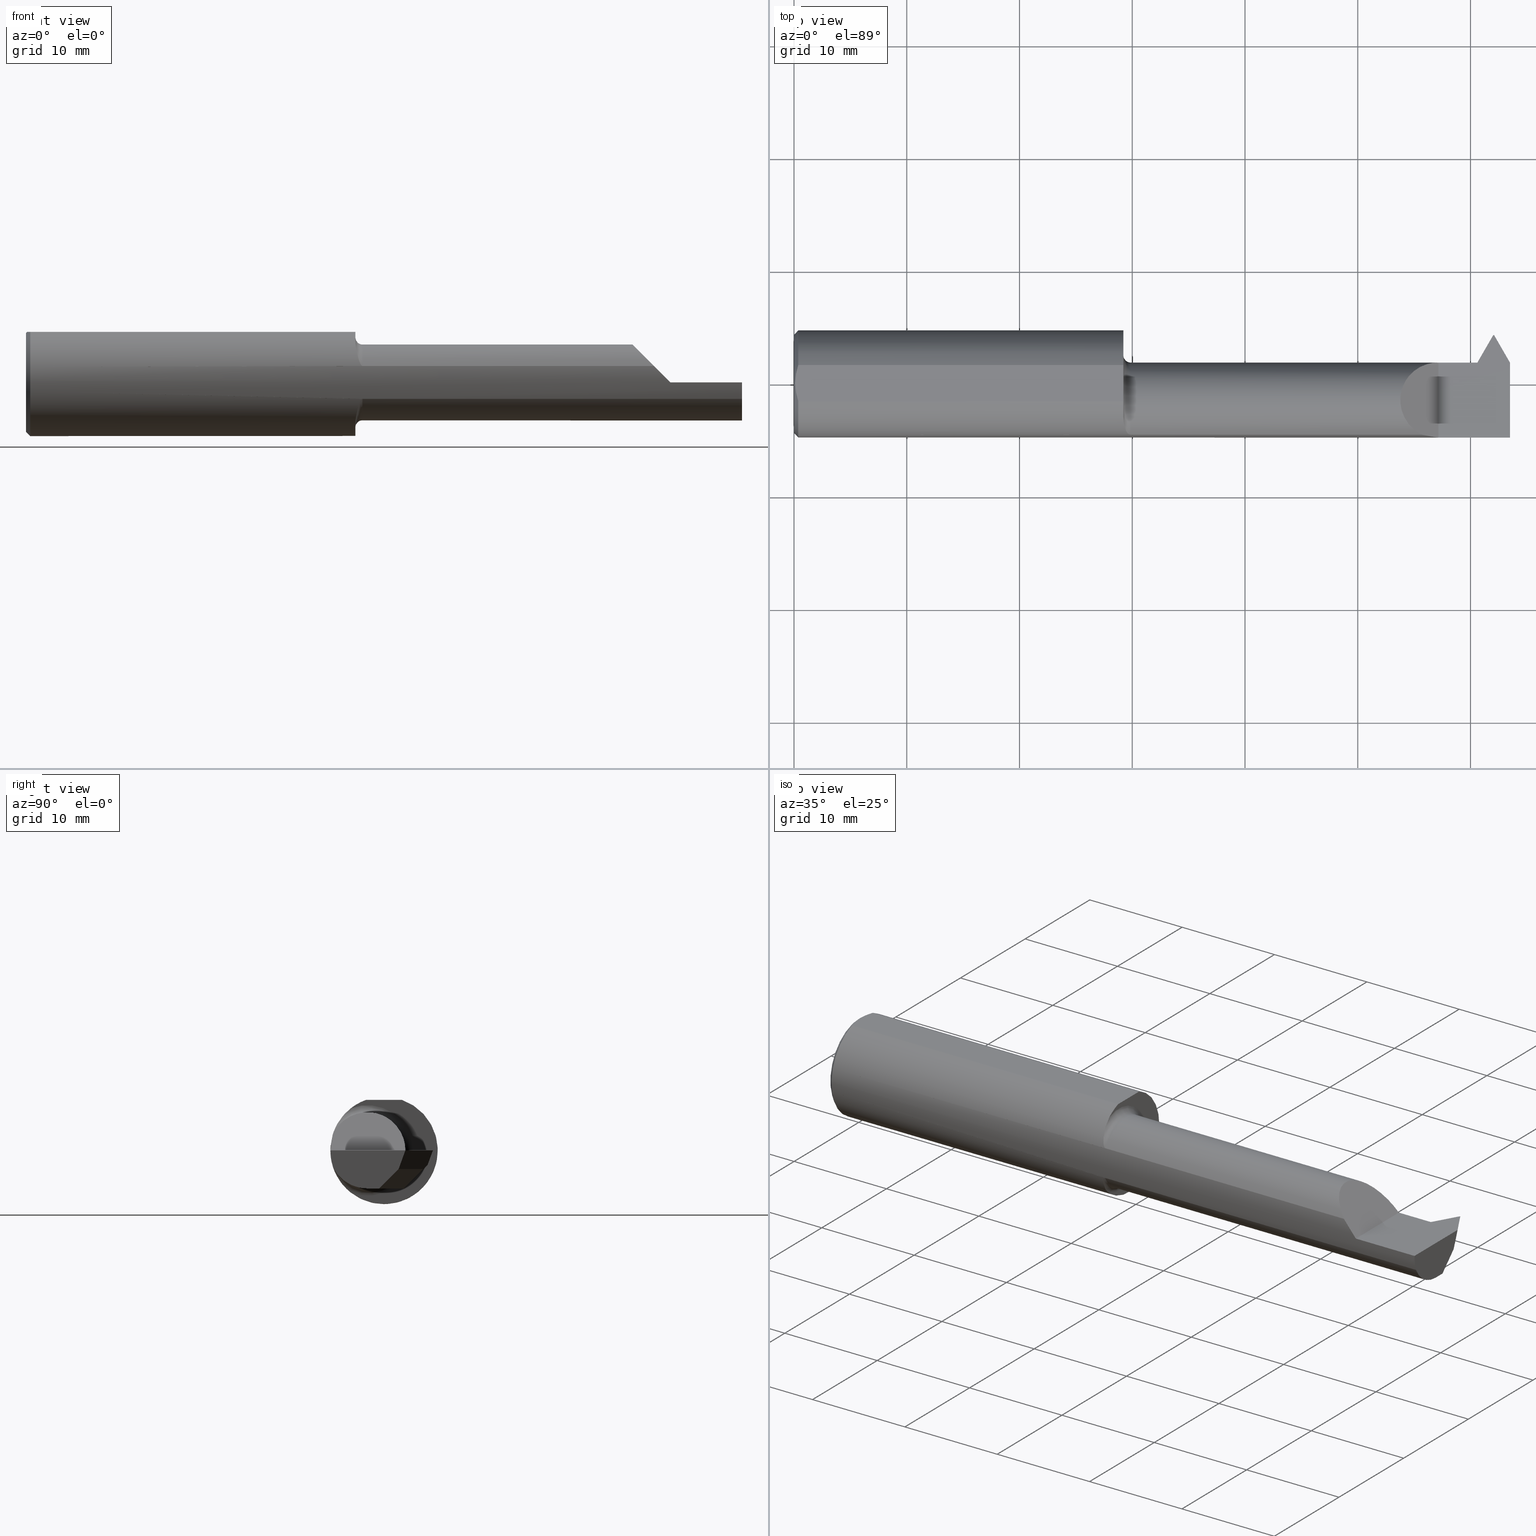
[diagram: canonical four-view strip — front | top / right | iso, engineering-drawing reading convention]
A machine part, canonical four-view strip (front | top / right | iso — engineering-drawing reading convention). The complete STEP part file that produces these views, byte-faithful:
ISO-10303-21;
HEADER;
FILE_DESCRIPTION (( 'STEP AP203' ),
    '1' );
FILE_NAME ('230418-TT3601250.STEP',
    '2025-04-22T22:31:01',
    ( '' ),
    ( '' ),
    'SwSTEP 2.0',
    'SolidWorks 2024',
    '' );
FILE_SCHEMA (( 'CONFIG_CONTROL_DESIGN' ));
ENDSEC;

DATA;
#1 = CARTESIAN_POINT ( 'NONE',  ( 2.376520281605562168, 0.07464999999999995250, -5.231313699881953010E-33 ) ) ;
#2 = VERTEX_POINT ( 'NONE', #451 ) ;
#3 = EDGE_CURVE ( 'NONE', #503, #197, #700, .T. ) ;
#4 = VECTOR ( 'NONE', #383, 39.37007874015748143 ) ;
#5 = VECTOR ( 'NONE', #569, 39.37007874015748143 ) ;
#6 = DIRECTION ( 'NONE',  ( 1.000000000000000000, -8.318523153256623909E-17, 0.000000000000000000 ) ) ;
#7 = CARTESIAN_POINT ( 'NONE',  ( 0.01500000000000093273, 0.000000000000000000, 0.000000000000000000 ) ) ;
#8 = ORIENTED_EDGE ( 'NONE', *, *, #729, .T. ) ;
#9 = ADVANCED_FACE ( 'NONE', ( #447 ), #651, .T. ) ;
#10 = CARTESIAN_POINT ( 'NONE',  ( 0.01500000000000093273, -0.06325108694718235836, 0.1763499999999999235 ) ) ;
#11 = ORIENTED_EDGE ( 'NONE', *, *, #334, .T. ) ;
#12 = LOCAL_TIME ( 15, 31, 1.000000000000000000, #385 ) ;
#13 = LINE ( 'NONE', #692, #168 ) ;
#14 = FACE_OUTER_BOUND ( 'NONE', #424, .T. ) ;
#15 = ORIENTED_EDGE ( 'NONE', *, *, #306, .T. ) ;
#16 = VECTOR ( 'NONE', #262, 39.37007874015748854 ) ;
#17 = ADVANCED_FACE ( 'NONE', ( #757, #592 ), #509, .T. ) ;
#18 = LINE ( 'NONE', #458, #5 ) ;
#19 = CARTESIAN_POINT ( 'NONE',  ( 2.192691453216397690, -0.1783697086546694455, 0.05730854678360214338 ) ) ;
#20 = PERSON_AND_ORGANIZATION ( #239, #717 ) ;
#21 = CARTESIAN_POINT ( 'NONE',  ( 2.250000000000000000, 0.07464999999999979985, 4.959819536546775670E-16 ) ) ;
#22 = DIRECTION ( 'NONE',  ( 0.7745966692414854027, 0.4472135954999560958, -0.4472135954999564844 ) ) ;
#23 = VERTEX_POINT ( 'NONE', #630 ) ;
#24 = CARTESIAN_POINT ( 'NONE',  ( 0.000000000000000000, 2.110678758330454820E-17, 0.1723499999999993371 ) ) ;
#25 = DIRECTION ( 'NONE',  ( 1.000000000000000000, -0.000000000000000000, -0.000000000000000000 ) ) ;
#26 = LINE ( 'NONE', #587, #80 ) ;
#27 = PRODUCT_RELATED_PRODUCT_CATEGORY ( 'detail', '', ( #758 ) ) ;
#28 = CARTESIAN_POINT ( 'NONE',  ( 1.167163479082083954, -0.1755340703778151268, 0.06552011612887555236 ) ) ;
#29 = DIRECTION ( 'NONE',  ( -0.1021978390768665951, 0.1770118497048830397, 0.9788883525469462832 ) ) ;
#30 = ORIENTED_EDGE ( 'NONE', *, *, #359, .F. ) ;
#31 = ORIENTED_EDGE ( 'NONE', *, *, #67, .F. ) ;
#32 = FACE_OUTER_BOUND ( 'NONE', #186, .T. ) ;
#33 = PERSON_AND_ORGANIZATION ( #239, #717 ) ;
#34 = CARTESIAN_POINT ( 'NONE',  ( 1.778260140802781386, -0.1783697086546697230, -0.05730854678360158133 ) ) ;
#35 = CARTESIAN_POINT ( 'NONE',  ( 2.386074374157796552, 0.07464999999999979985, 0.000000000000000000 ) ) ;
#36 = ORIENTED_EDGE ( 'NONE', *, *, #678, .F. ) ;
#37 = SHAPE_DEFINITION_REPRESENTATION ( #568, #167 ) ;
#38 = EDGE_CURVE ( 'NONE', #515, #101, #154, .T. ) ;
#39 =( GEOMETRIC_REPRESENTATION_CONTEXT ( 3 ) GLOBAL_UNCERTAINTY_ASSIGNED_CONTEXT ( ( #323 ) ) GLOBAL_UNIT_ASSIGNED_CONTEXT ( ( #339, #73, #649 ) ) REPRESENTATION_CONTEXT ( 'NONE', 'WORKASPACE' ) );
#40 = LINE ( 'NONE', #107, #774 ) ;
#41 = CARTESIAN_POINT ( 'NONE',  ( 1.175000000000000044, -0.05835000000000012399, 0.000000000000000000 ) ) ;
#42 = ORIENTED_EDGE ( 'NONE', *, *, #306, .F. ) ;
#43 = APPROVAL_DATE_TIME ( #241, #138 ) ;
#44 = CARTESIAN_POINT ( 'NONE',  ( 1.149999999999999911, -0.05835000000000011011, 0.000000000000000000 ) ) ;
#45 = AXIS2_PLACEMENT_3D ( 'NONE', #705, #508, #761 ) ;
#46 = ORIENTED_EDGE ( 'NONE', *, *, #161, .F. ) ;
#47 = VECTOR ( 'NONE', #169, 39.37007874015748143 ) ;
#48 = EDGE_CURVE ( 'NONE', #62, #202, #269, .T. ) ;
#49 = CARTESIAN_POINT ( 'NONE',  ( 1.152207105173797208, -0.1438831799119806576, 0.1203810775388764326 ) ) ;
#50 = ORIENTED_EDGE ( 'NONE', *, *, #67, .T. ) ;
#51 = DIRECTION ( 'NONE',  ( 0.000000000000000000, -0.3420201433256632728, -0.9396926207859103153 ) ) ;
#52 = ORIENTED_EDGE ( 'NONE', *, *, #161, .T. ) ;
#53 = ADVANCED_FACE ( 'NONE', ( #164 ), #330, .T. ) ;
#54 =( BOUNDED_CURVE ( )  B_SPLINE_CURVE ( 3, ( #363, #670, #307, #467 ),
 .UNSPECIFIED., .F., .T. ) 
 B_SPLINE_CURVE_WITH_KNOTS ( ( 4, 4 ),
 ( 4.712388980384690562, 5.023262387692865261 ),
 .UNSPECIFIED. ) 
 CURVE ( )  GEOMETRIC_REPRESENTATION_ITEM ( )  RATIONAL_B_SPLINE_CURVE ( ( 1.000000000000000000, 0.9919626788073504509, 0.9919626788073504509, 1.000000000000000000 ) ) 
 REPRESENTATION_ITEM ( '' )  );
#55 = CARTESIAN_POINT ( 'NONE',  ( 2.500000000000000000, 0.000000000000000000, 0.000000000000000000 ) ) ;
#56 = EDGE_LOOP ( 'NONE', ( #557, #318, #147, #109, #261 ) ) ;
#57 = TOROIDAL_SURFACE ( 'NONE', #298, 0.1580000000000000016, 0.02500000000000007425 ) ;
#58 = DIRECTION ( 'NONE',  ( 0.000000000000000000, 0.000000000000000000, -1.000000000000000000 ) ) ;
#59 = ORIENTED_EDGE ( 'NONE', *, *, #398, .F. ) ;
#60 =( BOUNDED_CURVE ( )  B_SPLINE_CURVE ( 3, ( #483, #476, #728, #245 ),
 .UNSPECIFIED., .F., .T. ) 
 B_SPLINE_CURVE_WITH_KNOTS ( ( 4, 4 ),
 ( 1.213003830136084149, 1.570796326794911657 ),
 .UNSPECIFIED. ) 
 CURVE ( )  GEOMETRIC_REPRESENTATION_ITEM ( )  RATIONAL_B_SPLINE_CURVE ( ( 1.000000000000000000, 0.9893604650975277304, 0.9893604650975277304, 1.000000000000000000 ) ) 
 REPRESENTATION_ITEM ( '' )  );
#61 = DIRECTION ( 'NONE',  ( 0.000000000000000000, 0.3401001459858907228, 0.9403892229818331394 ) ) ;
#62 = VERTEX_POINT ( 'NONE', #327 ) ;
#63 = CARTESIAN_POINT ( 'NONE',  ( 2.392860499994019730, 0.06289608526510648279, -0.06499999999999907241 ) ) ;
#64 = PLANE ( 'NONE',  #428 ) ;
#65 = VERTEX_POINT ( 'NONE', #779 ) ;
#66 = LINE ( 'NONE', #562, #16 ) ;
#67 = EDGE_CURVE ( 'NONE', #601, #623, #696, .T. ) ;
#68 = CARTESIAN_POINT ( 'NONE',  ( 2.368097682775599289, 0.06622740117003717009, -0.04657758170750794791 ) ) ;
#69 = ORIENTED_EDGE ( 'NONE', *, *, #223, .F. ) ;
#70 = CARTESIAN_POINT ( 'NONE',  ( 1.150000000000001910, 0.06622740117007291927, -0.04657758170741260056 ) ) ;
#71 = ORIENTED_EDGE ( 'NONE', *, *, #470, .F. ) ;
#72 = PRODUCT_DEFINITION_FORMATION_WITH_SPECIFIED_SOURCE ( 'ANY', '', #758, .NOT_KNOWN. ) ;
#73 =( NAMED_UNIT ( * ) PLANE_ANGLE_UNIT ( ) SI_UNIT ( $, .RADIAN. ) );
#74 = EDGE_CURVE ( 'NONE', #102, #680, #83, .T. ) ;
#75 = DIRECTION ( 'NONE',  ( 1.000000000000000000, -8.318523153256623909E-17, 0.000000000000000000 ) ) ;
#76 = DIRECTION ( 'NONE',  ( 0.000000000000000000, 0.000000000000000000, -1.000000000000000000 ) ) ;
#77 = ORIENTED_EDGE ( 'NONE', *, *, #470, .T. ) ;
#78 = CALENDAR_DATE ( 2025, 22, 4 ) ;
#79 = AXIS2_PLACEMENT_3D ( 'NONE', #177, #732, #415 ) ;
#80 = VECTOR ( 'NONE', #281, 39.37007874015748854 ) ;
#81 = DIMENSIONAL_EXPONENTS ( 1.000000000000000000, 0.000000000000000000, 0.000000000000000000, 0.000000000000000000, 0.000000000000000000, 0.000000000000000000, 0.000000000000000000 ) ;
#82 = CARTESIAN_POINT ( 'NONE',  ( 2.450094918001927802, 0.1524514882866827847, -0.05000000000000742045 ) ) ;
#83 = LINE ( 'NONE', #635, #755 ) ;
#84 = ORIENTED_EDGE ( 'NONE', *, *, #417, .T. ) ;
#85 = PLANE ( 'NONE',  #305 ) ;
#86 = APPLICATION_CONTEXT ( 'configuration controlled 3d designs of mechanical parts and assemblies' ) ;
#87 = LINE ( 'NONE', #778, #150 ) ;
#88 = CARTESIAN_POINT ( 'NONE',  ( 2.581520281605562683, -0.05835000000000024889, -0.1330000000000000626 ) ) ;
#89 = VERTEX_POINT ( 'NONE', #463 ) ;
#90 = CARTESIAN_POINT ( 'NONE',  ( 1.158844572613993984, -0.1652240583779477356, 0.08882027308793256914 ) ) ;
#91 = CC_DESIGN_APPROVAL ( #138, ( #72 ) ) ;
#92 = B_SPLINE_CURVE_WITH_KNOTS ( 'NONE', 3,
 ( #10, #380, #263, #315, #486, #739 ),
 .UNSPECIFIED., .F., .F.,
 ( 4, 2, 4 ),
 ( 0.001848734457000598269, 0.002662174239506810876, 0.003475614022013023916 ),
 .UNSPECIFIED. ) ;
#93 = CARTESIAN_POINT ( 'NONE',  ( 2.500000000000000000, 0.000000000000000000, 0.000000000000000000 ) ) ;
#94 = DIRECTION ( 'NONE',  ( -0.4999999999999911737, 0.000000000000000000, 0.8660254037844437036 ) ) ;
#95 = ORIENTED_EDGE ( 'NONE', *, *, #157, .T. ) ;
#96 = DIRECTION ( 'NONE',  ( -0.8522042425194527038, -0.4920203488231402744, 0.1779435454738421962 ) ) ;
#97 = PERSON_AND_ORGANIZATION_ROLE ( 'design_owner' ) ;
#98 = AXIS2_PLACEMENT_3D ( 'NONE', #93, #450, #271 ) ;
#99 = AXIS2_PLACEMENT_3D ( 'NONE', #767, #444, #76 ) ;
#100 = DIRECTION ( 'NONE',  ( -1.000000000000000000, -0.000000000000000000, -0.000000000000000000 ) ) ;
#101 = VERTEX_POINT ( 'NONE', #216 ) ;
#102 = VERTEX_POINT ( 'NONE', #716 ) ;
#103 = CALENDAR_DATE ( 2025, 22, 4 ) ;
#104 = LINE ( 'NONE', #24, #155 ) ;
#105 = CARTESIAN_POINT ( 'NONE',  ( 1.150000000000000133, -0.06325108694718235836, 0.1763499999999999235 ) ) ;
#106 = ORIENTED_EDGE ( 'NONE', *, *, #558, .F. ) ;
#107 = CARTESIAN_POINT ( 'NONE',  ( 1.778260140802781386, -0.1783697086546697230, 0.05730854678360158133 ) ) ;
#108 = PLANE ( 'NONE',  #367 ) ;
#109 = ORIENTED_EDGE ( 'NONE', *, *, #48, .F. ) ;
#110 = EDGE_CURVE ( 'NONE', #660, #369, #640, .T. ) ;
#111 = LINE ( 'NONE', #418, #191 ) ;
#112 = VECTOR ( 'NONE', #577, 39.37007874015748143 ) ;
#113 = CARTESIAN_POINT ( 'NONE',  ( 1.172655856876671399, -0.1781552959228009658, 0.05797775639604549336 ) ) ;
#114 = ORIENTED_EDGE ( 'NONE', *, *, #244, .F. ) ;
#115 = LINE ( 'NONE', #400, #801 ) ;
#116 = EDGE_LOOP ( 'NONE', ( #276, #480, #247, #718 ) ) ;
#117 = DIRECTION ( 'NONE',  ( -0.4999999999999973910, 0.8660254037844400399, 0.000000000000000000 ) ) ;
#118 = LOCAL_TIME ( 15, 31, 1.000000000000000000, #527 ) ;
#119 = LINE ( 'NONE', #311, #704 ) ;
#120 = LOCAL_TIME ( 15, 31, 1.000000000000000000, #702 ) ;
#121 = VERTEX_POINT ( 'NONE', #336 ) ;
#122 = LINE ( 'NONE', #1, #603 ) ;
#123 = ORIENTED_EDGE ( 'NONE', *, *, #127, .F. ) ;
#124 = AXIS2_PLACEMENT_3D ( 'NONE', #419, #283, #546 ) ;
#125 = CARTESIAN_POINT ( 'NONE',  ( 1.149999999999999689, -0.1160303770351326785, -0.1470951192429067189 ) ) ;
#126 = ORIENTED_EDGE ( 'NONE', *, *, #789, .T. ) ;
#127 = EDGE_CURVE ( 'NONE', #282, #371, #26, .T. ) ;
#128 = CARTESIAN_POINT ( 'NONE',  ( 2.500000000000000000, 0.05101335071013886335, -0.06499999999999907241 ) ) ;
#129 = CARTESIAN_POINT ( 'NONE',  ( 2.876828993045917215, 0.1873499999999998500, 0.1763499999999999235 ) ) ;
#130 = VERTEX_POINT ( 'NONE', #519 ) ;
#131 = AXIS2_PLACEMENT_3D ( 'NONE', #628, #219, #697 ) ;
#132 = ADVANCED_FACE ( 'NONE', ( #222 ), #459, .T. ) ;
#133 = B_SPLINE_CURVE_WITH_KNOTS ( 'NONE', 3,
 ( #377, #550, #188, #249, #803, #612, #673, #622, #368, #201, #742, #560, #321, #125 ),
 .UNSPECIFIED., .F., .F.,
 ( 4, 2, 2, 2, 2, 2, 4 ),
 ( 1.965724206579997936E-07, 9.384097494425176409E-05, 0.0001874853774678455120, 0.0003747741825150328453, 0.0007493517926094115777, 0.001498507012798170127, 0.002996817453175685923 ),
 .UNSPECIFIED. ) ;
#134 = CARTESIAN_POINT ( 'NONE',  ( 2.441500000000000004, 0.1706500000000000239, 0.000000000000000000 ) ) ;
#135 = ORIENTED_EDGE ( 'NONE', *, *, #642, .T. ) ;
#136 = CARTESIAN_POINT ( 'NONE',  ( 0.01500000000000093273, 0.06325108694718235836, 0.1763499999999999235 ) ) ;
#137 = VERTEX_POINT ( 'NONE', #227 ) ;
#138 = APPROVAL ( #166, 'UNSPECIFIED' ) ;
#139 = CARTESIAN_POINT ( 'NONE',  ( 0.000000000000000000, 2.202527268266510421E-17, 0.1723499999999993371 ) ) ;
#140 = CARTESIAN_POINT ( 'NONE',  ( 2.500000000000000000, -0.1873499999999999888, 0.000000000000000000 ) ) ;
#141 = DIRECTION ( 'NONE',  ( 1.000000000000000000, 0.000000000000000000, 0.000000000000000000 ) ) ;
#142 = EDGE_LOOP ( 'NONE', ( #8, #606, #535, #50, #806, #46, #784, #672, #501, #184 ) ) ;
#143 = DIRECTION ( 'NONE',  ( 1.000000000000000000, 0.000000000000000000, 0.000000000000000000 ) ) ;
#144 =( BOUNDED_CURVE ( )  B_SPLINE_CURVE ( 3, ( #352, #600, #655, #540 ),
 .UNSPECIFIED., .F., .T. ) 
 B_SPLINE_CURVE_WITH_KNOTS ( ( 4, 4 ),
 ( 3.001438763811743904, 3.281746543367842772 ),
 .UNSPECIFIED. ) 
 CURVE ( )  GEOMETRIC_REPRESENTATION_ITEM ( )  RATIONAL_B_SPLINE_CURVE ( ( 1.000000000000000000, 0.9934630068190678509, 0.9934630068190678509, 1.000000000000000000 ) ) 
 REPRESENTATION_ITEM ( '' )  );
#145 = FACE_OUTER_BOUND ( 'NONE', #358, .T. ) ;
#146 = CARTESIAN_POINT ( 'NONE',  ( 2.289103641135899814, 0.5742791931371850067, 0.3718277048504988191 ) ) ;
#147 = ORIENTED_EDGE ( 'NONE', *, *, #422, .T. ) ;
#148 = DIRECTION ( 'NONE',  ( 0.7071067811865539010, 0.000000000000000000, -0.7071067811865410224 ) ) ;
#149 = CARTESIAN_POINT ( 'NONE',  ( 0.000000000000000000, 0.000000000000000000, 0.000000000000000000 ) ) ;
#150 = VECTOR ( 'NONE', #25, 39.37007874015748143 ) ;
#151 = VECTOR ( 'NONE', #29, 39.37007874015748854 ) ;
#152 = EDGE_CURVE ( 'NONE', #371, #228, #341, .T. ) ;
#153 = DIRECTION ( 'NONE',  ( 1.000000000000000000, 0.000000000000000000, 0.000000000000000000 ) ) ;
#154 = LINE ( 'NONE', #146, #575 ) ;
#155 = VECTOR ( 'NONE', #266, 39.37007874015748854 ) ;
#156 = EDGE_LOOP ( 'NONE', ( #701, #194, #438, #304, #160 ) ) ;
#157 = EDGE_CURVE ( 'NONE', #369, #637, #782, .T. ) ;
#158 = DIRECTION ( 'NONE',  ( -1.000000000000000000, -0.000000000000000000, -0.000000000000000000 ) ) ;
#159 = CARTESIAN_POINT ( 'NONE',  ( 2.386074374157796552, 0.07464999999999979985, 0.000000000000000000 ) ) ;
#160 = ORIENTED_EDGE ( 'NONE', *, *, #475, .F. ) ;
#161 = EDGE_CURVE ( 'NONE', #453, #121, #60, .T. ) ;
#162 = FACE_OUTER_BOUND ( 'NONE', #690, .T. ) ;
#163 = DIRECTION ( 'NONE',  ( 0.000000000000000000, -0.7071067811865509034, 0.7071067811865442421 ) ) ;
#164 = FACE_OUTER_BOUND ( 'NONE', #56, .T. ) ;
#165 = ORIENTED_EDGE ( 'NONE', *, *, #580, .T. ) ;
#166 = APPROVAL_STATUS ( 'not_yet_approved' ) ;
#167 = ADVANCED_BREP_SHAPE_REPRESENTATION ( '230418-TT3601250', ( #229, #265 ), #39 ) ;
#168 = VECTOR ( 'NONE', #564, 39.37007874015748854 ) ;
#169 = DIRECTION ( 'NONE',  ( -1.000000000000000000, 8.318523153256623909E-17, -0.000000000000000000 ) ) ;
#170 = ORIENTED_EDGE ( 'NONE', *, *, #171, .F. ) ;
#171 = EDGE_CURVE ( 'NONE', #137, #282, #111, .T. ) ;
#172 = DATE_AND_TIME ( #103, #374 ) ;
#173 = LINE ( 'NONE', #528, #257 ) ;
#174 = CARTESIAN_POINT ( 'NONE',  ( 2.400902952461865247, -0.0009900748573982074124, -0.1330000000000000349 ) ) ;
#175 = ORIENTED_EDGE ( 'NONE', *, *, #192, .T. ) ;
#176 = PERSON_AND_ORGANIZATION_ROLE ( 'design_supplier' ) ;
#177 = CARTESIAN_POINT ( 'NONE',  ( 2.250000000000000000, -0.2500000000000000555, 9.184850993605143507E-17 ) ) ;
#178 = ORIENTED_EDGE ( 'NONE', *, *, #585, .F. ) ;
#179 = ADVANCED_FACE ( 'NONE', ( #529 ), #108, .F. ) ;
#180 = CARTESIAN_POINT ( 'NONE',  ( 2.401951558677192455, -0.05835000000000021420, -0.1330000000000000349 ) ) ;
#181 = ORIENTED_EDGE ( 'NONE', *, *, #687, .T. ) ;
#182 = CARTESIAN_POINT ( 'NONE',  ( 2.502536187197063278, -0.6949619746631676698, -1.012821922518980289 ) ) ;
#183 = CARTESIAN_POINT ( 'NONE',  ( 1.149999999999999689, -0.1160303770351326785, 0.1470951192429067189 ) ) ;
#184 = ORIENTED_EDGE ( 'NONE', *, *, #334, .F. ) ;
#185 = CARTESIAN_POINT ( 'NONE',  ( 2.500000000000000000, 0.05101335071013886335, -0.06499999999999907241 ) ) ;
#186 = EDGE_LOOP ( 'NONE', ( #487, #287 ) ) ;
#187 = EDGE_CURVE ( 'NONE', #763, #601, #54, .T. ) ;
#188 = CARTESIAN_POINT ( 'NONE',  ( 1.172632702519553760, -0.1781504652642093567, -0.05799271583144235270 ) ) ;
#189 = ORIENTED_EDGE ( 'NONE', *, *, #346, .T. ) ;
#190 = AXIS2_PLACEMENT_3D ( 'NONE', #7, #753, #58 ) ;
#191 = VECTOR ( 'NONE', #421, 39.37007874015748854 ) ;
#192 = EDGE_CURVE ( 'NONE', #23, #413, #472, .T. ) ;
#193 = DIRECTION ( 'NONE',  ( 0.000000000000000000, -6.226251301349470739E-15, -1.000000000000000000 ) ) ;
#194 = ORIENTED_EDGE ( 'NONE', *, *, #624, .T. ) ;
#195 = DIRECTION ( 'NONE',  ( -1.000000000000000000, -0.000000000000000000, -0.000000000000000000 ) ) ;
#196 = DIRECTION ( 'NONE',  ( 1.000000000000000000, 0.000000000000000000, -0.000000000000000000 ) ) ;
#197 = VERTEX_POINT ( 'NONE', #105 ) ;
#198 = CARTESIAN_POINT ( 'NONE',  ( 2.435905081998072319, 0.06945148828669096830, -0.1330000000000000626 ) ) ;
#199 = APPROVAL_PERSON_ORGANIZATION ( #465, #410, #785 ) ;
#200 = ADVANCED_FACE ( 'NONE', ( #292 ), #57, .F. ) ;
#201 = CARTESIAN_POINT ( 'NONE',  ( 1.158867519642199584, -0.1652587220708489901, -0.08874743406640223098 ) ) ;
#202 = VERTEX_POINT ( 'NONE', #597 ) ;
#203 = VECTOR ( 'NONE', #513, 39.37007874015748854 ) ;
#204 = VECTOR ( 'NONE', #658, 39.37007874015748143 ) ;
#205 = DIRECTION ( 'NONE',  ( 0.000000000000000000, 1.000000000000000000, 0.000000000000000000 ) ) ;
#206 = DESIGN_CONTEXT ( 'detailed design', #86, 'design' ) ;
#207 = CARTESIAN_POINT ( 'NONE',  ( 1.175000000000000044, -0.05835000000000011011, 0.000000000000000000 ) ) ;
#208 = DIRECTION ( 'NONE',  ( 0.000000000000000000, -1.000000000000000000, 0.000000000000000000 ) ) ;
#209 = PLANE ( 'NONE',  #609 ) ;
#210 = FACE_OUTER_BOUND ( 'NONE', #725, .T. ) ;
#211 = ORIENTED_EDGE ( 'NONE', *, *, #490, .T. ) ;
#212 = EDGE_LOOP ( 'NONE', ( #797, #588 ) ) ;
#213 = EDGE_CURVE ( 'NONE', #101, #485, #13, .T. ) ;
#214 = SECURITY_CLASSIFICATION ( '', '', #348 ) ;
#215 = CARTESIAN_POINT ( 'NONE',  ( -3.937007874019685528E-05, 0.1524514882866901955, -0.05000000000000000278 ) ) ;
#216 = CARTESIAN_POINT ( 'NONE',  ( 2.450094918001927802, 0.1374514882866920695, -0.06499999999999817035 ) ) ;
#217 = ORIENTED_EDGE ( 'NONE', *, *, #789, .F. ) ;
#218 = CARTESIAN_POINT ( 'NONE',  ( 1.150459820461684712, -0.1306920593659785523, 0.1345866223280899054 ) ) ;
#219 = DIRECTION ( 'NONE',  ( -1.000000000000000000, -0.000000000000000000, -0.000000000000000000 ) ) ;
#220 = VECTOR ( 'NONE', #586, 39.37007874015748143 ) ;
#221 = LINE ( 'NONE', #340, #112 ) ;
#222 = FACE_OUTER_BOUND ( 'NONE', #525, .T. ) ;
#223 = EDGE_CURVE ( 'NONE', #240, #641, #572, .T. ) ;
#224 = ORIENTED_EDGE ( 'NONE', *, *, #251, .F. ) ;
#225 = LINE ( 'NONE', #542, #481 ) ;
#226 = CARTESIAN_POINT ( 'NONE',  ( 2.444496156148153077, 0.1716984148925982945, 0.002880496243633760920 ) ) ;
#227 = CARTESIAN_POINT ( 'NONE',  ( 2.435905081998071875, 0.1374514882866911258, -0.06499999999999907241 ) ) ;
#228 = VERTEX_POINT ( 'NONE', #621 ) ;
#229 = MANIFOLD_SOLID_BREP ( 'Cut-Sweep1', #677 ) ;
#230 = CARTESIAN_POINT ( 'NONE',  ( 1.170156893127637820, -0.1773094052629750617, 0.06051821018280337250 ) ) ;
#231 = CALENDAR_DATE ( 2025, 22, 4 ) ;
#232 = CC_DESIGN_APPROVAL ( #410, ( #214 ) ) ;
#233 = DIRECTION ( 'NONE',  ( 1.000000000000000000, -1.519028875531158940E-14, -0.000000000000000000 ) ) ;
#234 = CC_DESIGN_DATE_AND_TIME_ASSIGNMENT ( #781, #594, ( #214 ) ) ;
#235 = CARTESIAN_POINT ( 'NONE',  ( 2.500000000000000000, 0.000000000000000000, 0.000000000000000000 ) ) ;
#236 = AXIS2_PLACEMENT_3D ( 'NONE', #736, #96, #357 ) ;
#237 = DIRECTION ( 'NONE',  ( 0.000000000000000000, 0.000000000000000000, 1.000000000000000000 ) ) ;
#238 = DIRECTION ( 'NONE',  ( -8.318523153256623909E-17, -1.000000000000000000, 0.000000000000000000 ) ) ;
#239 = PERSON ( 'UNSPECIFIED', 'UNSPECIFIED', 'UNSPECIFIED', ('UNSPECIFIED'), ('UNSPECIFIED'), ('UNSPECIFIED') ) ;
#240 = VERTEX_POINT ( 'NONE', #683 ) ;
#241 = DATE_AND_TIME ( #231, #752 ) ;
#242 = CARTESIAN_POINT ( 'NONE',  ( 2.581520281605562683, -0.05835000000000024889, -0.1330000000000000626 ) ) ;
#243 = EDGE_LOOP ( 'NONE', ( #250, #620, #15, #731, #314, #686, #547, #381, #264, #473, #178, #273, #71 ) ) ;
#244 = EDGE_CURVE ( 'NONE', #637, #2, #66, .T. ) ;
#245 = CARTESIAN_POINT ( 'NONE',  ( 2.376520281605562168, 0.07464999999999995250, 0.000000000000000000 ) ) ;
#246 = PLANE ( 'NONE',  #236 ) ;
#247 = ORIENTED_EDGE ( 'NONE', *, *, #152, .T. ) ;
#248 = DIRECTION ( 'NONE',  ( 1.000000000000000000, 0.000000000000000000, 0.000000000000000000 ) ) ;
#249 = CARTESIAN_POINT ( 'NONE',  ( 1.170855552425395851, -0.1776175334603407041, -0.05960499283470673676 ) ) ;
#250 = ORIENTED_EDGE ( 'NONE', *, *, #729, .F. ) ;
#251 = EDGE_CURVE ( 'NONE', #485, #23, #491, .T. ) ;
#252 = EDGE_CURVE ( 'NONE', #197, #301, #538, .T. ) ;
#253 = DIRECTION ( 'NONE',  ( 0.000000000000000000, 0.000000000000000000, -1.000000000000000000 ) ) ;
#254 = EDGE_LOOP ( 'NONE', ( #361, #543, #376, #489 ) ) ;
#255 = EDGE_CURVE ( 'NONE', #347, #312, #617, .T. ) ;
#256 = FACE_OUTER_BOUND ( 'NONE', #212, .T. ) ;
#257 = VECTOR ( 'NONE', #233, 39.37007874015748143 ) ;
#258 = ORIENTED_EDGE ( 'NONE', *, *, #74, .F. ) ;
#259 = VECTOR ( 'NONE', #581, 39.37007874015748143 ) ;
#260 = CARTESIAN_POINT ( 'NONE',  ( 0.01500000000000093273, -0.06325108694718235836, 0.1763499999999999235 ) ) ;
#261 = ORIENTED_EDGE ( 'NONE', *, *, #300, .F. ) ;
#262 = DIRECTION ( 'NONE',  ( -0.1021978390768665951, 0.1770118497048830397, 0.9788883525469462832 ) ) ;
#263 = CARTESIAN_POINT ( 'NONE',  ( 0.008771136374095043695, -0.04258802525788828869, 0.1763499999999999512 ) ) ;
#264 = ORIENTED_EDGE ( 'NONE', *, *, #493, .T. ) ;
#265 = AXIS2_PLACEMENT_3D ( 'NONE', #149, #571, #143 ) ;
#266 = DIRECTION ( 'NONE',  ( 0.7071067811865539010, 8.659560562354852739E-17, 0.7071067811865410224 ) ) ;
#267 = DIRECTION ( 'NONE',  ( -1.000000000000000000, 8.318523153256623909E-17, -0.000000000000000000 ) ) ;
#268 = CARTESIAN_POINT ( 'NONE',  ( 0.000000000000000000, -0.06325108694718235836, 0.1763499999999999235 ) ) ;
#269 = CIRCLE ( 'NONE', #99, 0.1873499999999999888 ) ;
#270 = DIRECTION ( 'NONE',  ( 1.000000000000000000, -8.318523153256623909E-17, 0.000000000000000000 ) ) ;
#271 = DIRECTION ( 'NONE',  ( -0.000000000000000000, 0.000000000000000000, 1.000000000000000000 ) ) ;
#272 = DIRECTION ( 'NONE',  ( 0.001253963230750781196, 0.3420198744252536116, 0.9396918819881066032 ) ) ;
#273 = ORIENTED_EDGE ( 'NONE', *, *, #765, .F. ) ;
#274 = PERSON_AND_ORGANIZATION_ROLE ( 'creator' ) ;
#275 = LINE ( 'NONE', #82, #203 ) ;
#276 = ORIENTED_EDGE ( 'NONE', *, *, #171, .T. ) ;
#277 = ORIENTED_EDGE ( 'NONE', *, *, #595, .T. ) ;
#278 = FACE_OUTER_BOUND ( 'NONE', #254, .T. ) ;
#279 = EDGE_CURVE ( 'NONE', #431, #740, #429, .T. ) ;
#280 = DIRECTION ( 'NONE',  ( -1.000000000000000000, -0.000000000000000000, -0.000000000000000000 ) ) ;
#281 = DIRECTION ( 'NONE',  ( -0.4999999999999907851, -0.8660254037844438146, 0.000000000000000000 ) ) ;
#282 = VERTEX_POINT ( 'NONE', #198 ) ;
#283 = DIRECTION ( 'NONE',  ( 1.000000000000000000, 0.000000000000000000, 0.000000000000000000 ) ) ;
#284 = VECTOR ( 'NONE', #148, 39.37007874015748854 ) ;
#285 = DIRECTION ( 'NONE',  ( -0.7745966692414908428, 0.4472135954999512664, -0.4472135954999517660 ) ) ;
#286 = CARTESIAN_POINT ( 'NONE',  ( 2.250000000000000000, 0.07464999999999979985, 4.959819536546775670E-16 ) ) ;
#287 = ORIENTED_EDGE ( 'NONE', *, *, #518, .F. ) ;
#288 = CARTESIAN_POINT ( 'NONE',  ( -3.937007874019685528E-05, 0.1706500000000000239, 7.347880794884115299E-17 ) ) ;
#289 = PERSON_AND_ORGANIZATION_ROLE ( 'classification_officer' ) ;
#290 = CC_DESIGN_DATE_AND_TIME_ASSIGNMENT ( #726, #792, ( #727 ) ) ;
#291 = PLANE ( 'NONE',  #452 ) ;
#292 = FACE_OUTER_BOUND ( 'NONE', #408, .T. ) ;
#293 = DIRECTION ( 'NONE',  ( -0.9840406976462907629, 2.800260005780207365E-15, 0.1779435454738421685 ) ) ;
#294 = DIRECTION ( 'NONE',  ( -0.09000871797897440352, 0.6219594709071014638, 0.7778591435708266388 ) ) ;
#295 = ORIENTED_EDGE ( 'NONE', *, *, #632, .F. ) ;
#296 = CALENDAR_DATE ( 2025, 22, 4 ) ;
#297 = VECTOR ( 'NONE', #61, 39.37007874015748143 ) ;
#298 = AXIS2_PLACEMENT_3D ( 'NONE', #41, #534, #238 ) ;
#299 = DIRECTION ( 'NONE',  ( 1.000000000000000000, 0.000000000000000000, -0.000000000000000000 ) ) ;
#300 = EDGE_CURVE ( 'NONE', #431, #62, #497, .T. ) ;
#301 = VERTEX_POINT ( 'NONE', #183 ) ;
#302 = EDGE_CURVE ( 'NONE', #598, #641, #676, .T. ) ;
#303 = DIRECTION ( 'NONE',  ( -0.000000000000000000, 1.000000000000000000, -0.000000000000000000 ) ) ;
#304 = ORIENTED_EDGE ( 'NONE', *, *, #422, .F. ) ;
#305 = AXIS2_PLACEMENT_3D ( 'NONE', #644, #709, #393 ) ;
#306 = EDGE_CURVE ( 'NONE', #641, #763, #225, .T. ) ;
#307 = CARTESIAN_POINT ( 'NONE',  ( 2.211249739839922235, -0.1843323154515827400, 0.03875026016007727947 ) ) ;
#308 = FACE_OUTER_BOUND ( 'NONE', #743, .T. ) ;
#309 = VERTEX_POINT ( 'NONE', #671 ) ;
#310 = AXIS2_PLACEMENT_3D ( 'NONE', #524, #22, #384 ) ;
#311 = CARTESIAN_POINT ( 'NONE',  ( 1.150000000000000133, 0.1706500000000000516, 4.959819536546775670E-16 ) ) ;
#312 = VERTEX_POINT ( 'NONE', #712 ) ;
#313 = PLANE ( 'NONE',  #633 ) ;
#314 = ORIENTED_EDGE ( 'NONE', *, *, #715, .F. ) ;
#315 = CARTESIAN_POINT ( 'NONE',  ( 0.004994273251993877616, -0.02144446570098909599, 0.1763499999999999235 ) ) ;
#316 = ORIENTED_EDGE ( 'NONE', *, *, #580, .F. ) ;
#317 = DIRECTION ( 'NONE',  ( 0.4999999999999907851, 0.8660254037844438146, 0.000000000000000000 ) ) ;
#318 = ORIENTED_EDGE ( 'NONE', *, *, #738, .T. ) ;
#319 = CIRCLE ( 'NONE', #343, 0.1330000000000000349 ) ;
#320 = CC_DESIGN_PERSON_AND_ORGANIZATION_ASSIGNMENT ( #33, #289, ( #214 ) ) ;
#321 = CARTESIAN_POINT ( 'NONE',  ( 1.149999999999999245, -0.1312984737625756404, -0.1350514632126302572 ) ) ;
#322 = EDGE_LOOP ( 'NONE', ( #31, #627, #328 ) ) ;
#323 = UNCERTAINTY_MEASURE_WITH_UNIT (LENGTH_MEASURE( 1.000000000000000082E-05 ), #339, 'distance_accuracy_value', 'NONE');
#324 = CARTESIAN_POINT ( 'NONE',  ( 1.150000000000000133, 0.07464999999999989699, 4.959819536546775670E-16 ) ) ;
#325 = ORIENTED_EDGE ( 'NONE', *, *, #555, .T. ) ;
#326 = PLANE ( 'NONE',  #770 ) ;
#327 = CARTESIAN_POINT ( 'NONE',  ( 0.01500000000000093273, 0.000000000000000000, -0.1873499999999999888 ) ) ;
#328 = ORIENTED_EDGE ( 'NONE', *, *, #359, .T. ) ;
#329 = ADVANCED_FACE ( 'NONE', ( #162 ), #246, .F. ) ;
#330 = CONICAL_SURFACE ( 'NONE', #549, 0.1723499999999993371, 0.7853981633974391752 ) ;
#331 = APPROVAL_DATE_TIME ( #764, #566 ) ;
#332 = PLANE ( 'NONE',  #98 ) ;
#333 = CARTESIAN_POINT ( 'NONE',  ( 1.150000000000000133, -0.05835000000000011011, 0.000000000000000000 ) ) ;
#334 = EDGE_CURVE ( 'NONE', #598, #660, #403, .T. ) ;
#335 = CARTESIAN_POINT ( 'NONE',  ( 0.000000000000000000, 0.06325108694718235836, 0.1763499999999999235 ) ) ;
#336 = CARTESIAN_POINT ( 'NONE',  ( 2.376520281605562168, 0.07464999999999995250, 0.000000000000000000 ) ) ;
#337 = CIRCLE ( 'NONE', #131, 0.1723499999999993371 ) ;
#338 = FACE_OUTER_BOUND ( 'NONE', #322, .T. ) ;
#339 =( CONVERSION_BASED_UNIT ( 'INCH', #511 ) LENGTH_UNIT ( ) NAMED_UNIT ( #81 ) );
#340 = CARTESIAN_POINT ( 'NONE',  ( -3.937007874019685528E-05, 0.1524514882866901955, -0.05000000000000000278 ) ) ;
#341 = LINE ( 'NONE', #182, #723 ) ;
#342 = ADVANCED_FACE ( 'NONE', ( #338 ), #668, .F. ) ;
#343 = AXIS2_PLACEMENT_3D ( 'NONE', #495, #500, #193 ) ;
#344 = DIRECTION ( 'NONE',  ( 0.2521791579305280306, 0.6842534882283907161, 0.6842534882283971553 ) ) ;
#345 = CYLINDRICAL_SURFACE ( 'NONE', #625, 0.1873499999999999888 ) ;
#346 = EDGE_CURVE ( 'NONE', #680, #130, #119, .T. ) ;
#347 = VERTEX_POINT ( 'NONE', #708 ) ;
#348 = SECURITY_CLASSIFICATION_LEVEL ( 'unclassified' ) ;
#349 = CARTESIAN_POINT ( 'NONE',  ( 2.376520281605562168, 0.07464999999999995250, 0.000000000000000000 ) ) ;
#350 = ORIENTED_EDGE ( 'NONE', *, *, #251, .T. ) ;
#351 = APPROVAL_STATUS ( 'not_yet_approved' ) ;
#352 = CARTESIAN_POINT ( 'NONE',  ( 2.392860499994019730, 0.02163535140251675315, -0.1062607338625887743 ) ) ;
#353 = ORIENTED_EDGE ( 'NONE', *, *, #38, .T. ) ;
#354 = AXIS2_PLACEMENT_3D ( 'NONE', #44, #532, #720 ) ;
#355 = VECTOR ( 'NONE', #375, 39.37007874015748143 ) ;
#356 = DIRECTION ( 'NONE',  ( 0.000000000000000000, -0.1779435454738421407, -0.9840406976462907629 ) ) ;
#357 = DIRECTION ( 'NONE',  ( 0.4999999999999948375, -0.8660254037844417052, 0.000000000000000000 ) ) ;
#358 = EDGE_LOOP ( 'NONE', ( #378, #551, #95, #468 ) ) ;
#359 = EDGE_CURVE ( 'NONE', #763, #623, #115, .T. ) ;
#360 = PLANE ( 'NONE',  #520 ) ;
#361 = ORIENTED_EDGE ( 'NONE', *, *, #765, .T. ) ;
#362 = VECTOR ( 'NONE', #769, 39.37007874015748854 ) ;
#363 = CARTESIAN_POINT ( 'NONE',  ( 2.250000000000000000, -0.1873499999999999888, 9.184850993605143507E-17 ) ) ;
#364 = DIRECTION ( 'NONE',  ( 0.000000000000000000, 0.000000000000000000, 1.000000000000000000 ) ) ;
#365 = ORIENTED_EDGE ( 'NONE', *, *, #604, .T. ) ;
#366 = AXIS2_PLACEMENT_3D ( 'NONE', #748, #195, #751 ) ;
#367 = AXIS2_PLACEMENT_3D ( 'NONE', #35, #407, #356 ) ;
#368 = CARTESIAN_POINT ( 'NONE',  ( 1.162851115778101851, -0.1712424833498266130, -0.07614241156969944746 ) ) ;
#369 = VERTEX_POINT ( 'NONE', #180 ) ;
#370 = DIRECTION ( 'NONE',  ( 0.1751915364254261753, 0.1751915364254229834, 0.9688218882383893282 ) ) ;
#371 = VERTEX_POINT ( 'NONE', #648 ) ;
#372 = DIRECTION ( 'NONE',  ( 0.000000000000000000, 1.000000000000000000, 0.000000000000000000 ) ) ;
#373 = CC_DESIGN_PERSON_AND_ORGANIZATION_ASSIGNMENT ( #20, #274, ( #727 ) ) ;
#374 = LOCAL_TIME ( 15, 31, 1.000000000000000000, #654 ) ;
#375 = DIRECTION ( 'NONE',  ( -1.000000000000000000, 8.318523153256623909E-17, -0.000000000000000000 ) ) ;
#376 = ORIENTED_EDGE ( 'NONE', *, *, #252, .T. ) ;
#377 = CARTESIAN_POINT ( 'NONE',  ( 1.175000000000000044, -0.1783697086546698063, -0.05730854678360088050 ) ) ;
#378 = ORIENTED_EDGE ( 'NONE', *, *, #152, .F. ) ;
#379 = VECTOR ( 'NONE', #280, 39.37007874015748143 ) ;
#380 = CARTESIAN_POINT ( 'NONE',  ( 0.01157250466904420454, -0.05309883057899376924, 0.1763499999999999512 ) ) ;
#381 = ORIENTED_EDGE ( 'NONE', *, *, #3, .F. ) ;
#382 = DIRECTION ( 'NONE',  ( 1.000000000000000000, -8.318523153256623909E-17, 0.000000000000000000 ) ) ;
#383 = DIRECTION ( 'NONE',  ( -0.01827811026638599678, 0.9998329413882549588, 0.000000000000000000 ) ) ;
#384 = DIRECTION ( 'NONE',  ( -0.4999999999999977240, 0.000000000000000000, -0.8660254037844398178 ) ) ;
#385 = COORDINATED_UNIVERSAL_TIME_OFFSET ( 8, 0, .BEHIND. ) ;
#386 = ADVANCED_FACE ( 'NONE', ( #308 ), #360, .F. ) ;
#387 = DIRECTION ( 'NONE',  ( 0.000000000000000000, 0.000000000000000000, -1.000000000000000000 ) ) ;
#388 = DIRECTION ( 'NONE',  ( 0.000000000000000000, 0.000000000000000000, -1.000000000000000000 ) ) ;
#389 = ADVANCED_FACE ( 'NONE', ( #32 ), #775, .T. ) ;
#390 = ORIENTED_EDGE ( 'NONE', *, *, #687, .F. ) ;
#391 = AXIS2_PLACEMENT_3D ( 'NONE', #129, #749, #196 ) ;
#392 = AXIS2_PLACEMENT_3D ( 'NONE', #433, #6, #372 ) ;
#393 = DIRECTION ( 'NONE',  ( -1.000000000000000000, 0.000000000000000000, 3.673940397442056910E-16 ) ) ;
#394 = FACE_OUTER_BOUND ( 'NONE', #116, .T. ) ;
#395 = ORIENTED_EDGE ( 'NONE', *, *, #300, .T. ) ;
#396 = LINE ( 'NONE', #610, #788 ) ;
#397 = LINE ( 'NONE', #226, #259 ) ;
#398 = EDGE_CURVE ( 'NONE', #137, #102, #396, .T. ) ;
#399 = CARTESIAN_POINT ( 'NONE',  ( 2.030319072763994814, -0.1008380660117488836, 0.2196809272360033816 ) ) ;
#400 = CARTESIAN_POINT ( 'NONE',  ( 2.250000000000000000, -0.2500000000000000555, 9.184850993605143507E-17 ) ) ;
#401 = CARTESIAN_POINT ( 'NONE',  ( 1.175000000000000044, -0.1783697086546699451, 0.05730854678360065846 ) ) ;
#402 = ORIENTED_EDGE ( 'NONE', *, *, #74, .T. ) ;
#403 = CIRCLE ( 'NONE', #721, 0.1330000000000000904 ) ;
#404 = CALENDAR_DATE ( 2025, 22, 4 ) ;
#405 = VECTOR ( 'NONE', #772, 39.37007874015748143 ) ;
#406 = FACE_OUTER_BOUND ( 'NONE', #790, .T. ) ;
#407 = DIRECTION ( 'NONE',  ( -1.494786234422541852E-14, -0.9840406976462907629, 0.1779435454738421407 ) ) ;
#408 = EDGE_LOOP ( 'NONE', ( #84, #135, #77, #611 ) ) ;
#409 = APPROVAL_DATE_TIME ( #172, #410 ) ;
#410 = APPROVAL ( #351, 'UNSPECIFIED' ) ;
#411 = PLANE ( 'NONE',  #602 ) ;
#412 = EDGE_CURVE ( 'NONE', #130, #240, #484, .T. ) ;
#413 = VERTEX_POINT ( 'NONE', #780 ) ;
#414 = APPROVAL_PERSON_ORGANIZATION ( #579, #566, #759 ) ;
#415 = DIRECTION ( 'NONE',  ( -0.7071067811865511255, 0.000000000000000000, 0.7071067811865440200 ) ) ;
#416 = ORIENTED_EDGE ( 'NONE', *, *, #213, .T. ) ;
#417 = EDGE_CURVE ( 'NONE', #301, #541, #457, .T. ) ;
#418 = CARTESIAN_POINT ( 'NONE',  ( 2.435905081998071875, 0.1524514882866976062, -0.04999999999999259204 ) ) ;
#419 = CARTESIAN_POINT ( 'NONE',  ( 2.392860499994019730, 0.1897402467415668648, -0.06499999999999907241 ) ) ;
#420 = ORIENTED_EDGE ( 'NONE', *, *, #255, .F. ) ;
#421 = DIRECTION ( 'NONE',  ( 4.299875284949216320E-15, -0.7071067811865441310, -0.7071067811865507924 ) ) ;
#422 = EDGE_CURVE ( 'NONE', #309, #202, #618, .T. ) ;
#423 = CARTESIAN_POINT ( 'NONE',  ( 1.153482061302896433, -0.1498697720275267709, 0.1128244190103250555 ) ) ;
#424 = EDGE_LOOP ( 'NONE', ( #427, #664, #395, #747, #530 ) ) ;
#425 = ADVANCED_FACE ( 'NONE', ( #685 ), #64, .F. ) ;
#426 = CARTESIAN_POINT ( 'NONE',  ( 0.01155164730757385523, 0.05303705098182950189, 0.1763499999999999235 ) ) ;
#427 = ORIENTED_EDGE ( 'NONE', *, *, #738, .F. ) ;
#428 = AXIS2_PLACEMENT_3D ( 'NONE', #134, #746, #440 ) ;
#429 = CIRCLE ( 'NONE', #366, 0.1723499999999993371 ) ;
#430 = CARTESIAN_POINT ( 'NONE',  ( 2.444566722042341045, 0.1524514882866901122, -0.05000000000000007910 ) ) ;
#431 = VERTEX_POINT ( 'NONE', #488 ) ;
#432 = CC_DESIGN_PERSON_AND_ORGANIZATION_ASSIGNMENT ( #474, #531, ( #72 ) ) ;
#433 = CARTESIAN_POINT ( 'NONE',  ( 1.150000000000000133, 0.000000000000000000, 0.000000000000000000 ) ) ;
#434 = FACE_OUTER_BOUND ( 'NONE', #156, .T. ) ;
#435 = ORIENTED_EDGE ( 'NONE', *, *, #398, .T. ) ;
#436 = CARTESIAN_POINT ( 'NONE',  ( 0.000000000000000000, 0.000000000000000000, -0.1723499999999993371 ) ) ;
#437 = CARTESIAN_POINT ( 'NONE',  ( 0.005015444644059653678, 0.02160243875479337175, 0.1763499999999999512 ) ) ;
#438 = ORIENTED_EDGE ( 'NONE', *, *, #585, .T. ) ;
#439 = EDGE_CURVE ( 'NONE', #637, #453, #563, .T. ) ;
#440 = DIRECTION ( 'NONE',  ( 0.4999999999999955036, 0.8660254037844411501, 0.000000000000000000 ) ) ;
#441 = EDGE_LOOP ( 'NONE', ( #175, #570, #416, #350 ) ) ;
#442 = PERSON_AND_ORGANIZATION ( #239, #717 ) ;
#443 = LINE ( 'NONE', #634, #220 ) ;
#444 = DIRECTION ( 'NONE',  ( 1.000000000000000000, 0.000000000000000000, 0.000000000000000000 ) ) ;
#445 = CARTESIAN_POINT ( 'NONE',  ( 1.149999999999999689, -0.1160303770351326785, -0.1470951192429067189 ) ) ;
#446 = PLANE ( 'NONE',  #45 ) ;
#447 = FACE_OUTER_BOUND ( 'NONE', #441, .T. ) ;
#448 = ORIENTED_EDGE ( 'NONE', *, *, #346, .F. ) ;
#449 = CARTESIAN_POINT ( 'NONE',  ( 1.150000000000000133, 0.1873499999999998222, 0.000000000000000000 ) ) ;
#450 = DIRECTION ( 'NONE',  ( -1.000000000000000000, 0.000000000000000000, -0.000000000000000000 ) ) ;
#451 = CARTESIAN_POINT ( 'NONE',  ( 2.386074374157796552, 0.07464999999999979985, 0.000000000000000000 ) ) ;
#452 = AXIS2_PLACEMENT_3D ( 'NONE', #349, #293, #724 ) ;
#453 = VERTEX_POINT ( 'NONE', #68 ) ;
#454 = VECTOR ( 'NONE', #75, 39.37007874015748143 ) ;
#455 = CARTESIAN_POINT ( 'NONE',  ( 1.156810654711052377, -0.1605151270937295038, 0.09708342838344825865 ) ) ;
#456 = FACE_OUTER_BOUND ( 'NONE', #722, .T. ) ;
#457 = B_SPLINE_CURVE_WITH_KNOTS ( 'NONE', 3,
 ( #799, #589, #218, #49, #423, #455, #90, #584, #479, #28, #526, #230, #477, #113, #730, #605 ),
 .UNSPECIFIED., .F., .F.,
 ( 4, 2, 2, 2, 2, 2, 2, 4 ),
 ( 0.0004765446698425100419, 0.001211022660623656223, 0.001945500651404802241, 0.002679978642185948910, 0.003047217637576522028, 0.003230837135271810538, 0.003322646884119457612, 0.003414456632967104686 ),
 .UNSPECIFIED. ) ;
#458 = CARTESIAN_POINT ( 'NONE',  ( 2.500000000000000000, 0.000000000000000000, -0.1330000000000000626 ) ) ;
#459 = PLANE ( 'NONE',  #494 ) ;
#460 = DIRECTION ( 'NONE',  ( 1.000000000000000000, -8.318523153256623909E-17, 0.000000000000000000 ) ) ;
#461 = CARTESIAN_POINT ( 'NONE',  ( 1.150000000000000133, 0.000000000000000000, 0.000000000000000000 ) ) ;
#462 = CARTESIAN_POINT ( 'NONE',  ( 2.192691453216397690, -0.1783697086546694455, 0.05730854678360214338 ) ) ;
#463 = CARTESIAN_POINT ( 'NONE',  ( 1.150000000000000133, 0.06325108694718235836, 0.1763499999999999235 ) ) ;
#464 = CIRCLE ( 'NONE', #582, 0.1873499999999999888 ) ;
#465 = PERSON_AND_ORGANIZATION ( #239, #717 ) ;
#466 = CARTESIAN_POINT ( 'NONE',  ( 0.000000000000000000, 0.000000000000000000, 0.000000000000000000 ) ) ;
#467 = CARTESIAN_POINT ( 'NONE',  ( 2.192691453216397690, -0.1783697086546694455, 0.05730854678360214338 ) ) ;
#468 = ORIENTED_EDGE ( 'NONE', *, *, #555, .F. ) ;
#469 = VECTOR ( 'NONE', #744, 39.37007874015748143 ) ;
#470 = EDGE_CURVE ( 'NONE', #65, #800, #133, .T. ) ;
#471 = LINE ( 'NONE', #34, #47 ) ;
#472 = LINE ( 'NONE', #667, #745 ) ;
#473 = ORIENTED_EDGE ( 'NONE', *, *, #48, .T. ) ;
#474 = PERSON_AND_ORGANIZATION ( #239, #717 ) ;
#475 = EDGE_CURVE ( 'NONE', #503, #309, #92, .T. ) ;
#476 = CARTESIAN_POINT ( 'NONE',  ( 2.370798808970036919, 0.07181227498230960404, -0.03164015816833461864 ) ) ;
#477 = CARTESIAN_POINT ( 'NONE',  ( 1.170882408083212534, -0.1776276410483821067, 0.05957475000070986543 ) ) ;
#478 = ORIENTED_EDGE ( 'NONE', *, *, #412, .F. ) ;
#479 = CARTESIAN_POINT ( 'NONE',  ( 1.164343418362563387, -0.1730952584121433491, 0.07182162584496175339 ) ) ;
#480 = ORIENTED_EDGE ( 'NONE', *, *, #127, .T. ) ;
#481 = VECTOR ( 'NONE', #158, 39.37007874015748143 ) ;
#482 = EDGE_CURVE ( 'NONE', #228, #137, #556, .T. ) ;
#483 = CARTESIAN_POINT ( 'NONE',  ( 2.368097682775599289, 0.06622740117003717009, -0.04657758170750794791 ) ) ;
#484 = LINE ( 'NONE', #768, #735 ) ;
#485 = VERTEX_POINT ( 'NONE', #185 ) ;
#486 = CARTESIAN_POINT ( 'NONE',  ( 0.004000000000000543052, -0.01077599264701415219, 0.1763499999999999235 ) ) ;
#487 = ORIENTED_EDGE ( 'NONE', *, *, #255, .T. ) ;
#488 = CARTESIAN_POINT ( 'NONE',  ( 0.000000000000000000, 0.000000000000000000, -0.1723499999999993371 ) ) ;
#489 = ORIENTED_EDGE ( 'NONE', *, *, #695, .T. ) ;
#490 = EDGE_CURVE ( 'NONE', #453, #121, #122, .T. ) ;
#491 = LINE ( 'NONE', #128, #469 ) ;
#492 = AXIS2_PLACEMENT_3D ( 'NONE', #645, #285, #710 ) ;
#493 = EDGE_CURVE ( 'NONE', #503, #62, #802, .T. ) ;
#494 = AXIS2_PLACEMENT_3D ( 'NONE', #711, #646, #94 ) ;
#495 = CARTESIAN_POINT ( 'NONE',  ( 2.392860499994019730, -0.05835000000000021420, 0.000000000000000000 ) ) ;
#496 = ORIENTED_EDGE ( 'NONE', *, *, #38, .F. ) ;
#497 = LINE ( 'NONE', #436, #284 ) ;
#498 = DIRECTION ( 'NONE',  ( 0.000000000000000000, -0.7071067811865479058, -0.7071067811865472397 ) ) ;
#499 = ADVANCED_FACE ( 'NONE', ( #256 ), #313, .F. ) ;
#500 = DIRECTION ( 'NONE',  ( -1.000000000000000000, -0.000000000000000000, -0.000000000000000000 ) ) ;
#501 = ORIENTED_EDGE ( 'NONE', *, *, #110, .F. ) ;
#502 = CARTESIAN_POINT ( 'NONE',  ( 2.392860499994019730, 0.06289608526510648279, -0.06499999999999907241 ) ) ;
#503 = VERTEX_POINT ( 'NONE', #260 ) ;
#504 = LINE ( 'NONE', #776, #362 ) ;
#505 = DIRECTION ( 'NONE',  ( 0.000000000000000000, -1.000000000000000000, 0.000000000000000000 ) ) ;
#506 = DIRECTION ( 'NONE',  ( 1.000000000000000000, 0.000000000000000000, 0.000000000000000000 ) ) ;
#507 = APPROVAL_STATUS ( 'not_yet_approved' ) ;
#508 = DIRECTION ( 'NONE',  ( 0.9947640934854951045, 0.01818544582510289373, 0.1005668328631435515 ) ) ;
#509 = CYLINDRICAL_SURFACE ( 'NONE', #636, 0.1330000000000000349 ) ;
#510 = EDGE_LOOP ( 'NONE', ( #737, #750 ) ) ;
#511 = LENGTH_MEASURE_WITH_UNIT ( LENGTH_MEASURE( 0.02539999999999999897 ), #522 );
#512 = APPLICATION_CONTEXT ( 'configuration controlled 3d designs of mechanical parts and assemblies' ) ;
#513 = DIRECTION ( 'NONE',  ( 4.283721848098016698E-15, 0.7071067811865441310, 0.7071067811865507924 ) ) ;
#514 = DIRECTION ( 'NONE',  ( -1.000000000000000000, 8.318523153256623909E-17, -0.000000000000000000 ) ) ;
#515 = VERTEX_POINT ( 'NONE', #430 ) ;
#516 = EDGE_CURVE ( 'NONE', #485, #240, #679, .T. ) ;
#517 = LINE ( 'NONE', #335, #379 ) ;
#518 = EDGE_CURVE ( 'NONE', #347, #312, #319, .T. ) ;
#519 = CARTESIAN_POINT ( 'NONE',  ( 2.444500000000000117, 0.1706500000000000239, 0.000000000000000000 ) ) ;
#520 = AXIS2_PLACEMENT_3D ( 'NONE', #288, #663, #51 ) ;
#521 = CARTESIAN_POINT ( 'NONE',  ( 2.500000000000000000, -0.05835000000000021420, 0.000000000000000000 ) ) ;
#522 =( LENGTH_UNIT ( ) NAMED_UNIT ( * ) SI_UNIT ( $, .METRE. ) );
#523 = CARTESIAN_POINT ( 'NONE',  ( 2.402011550668814888, -0.06163162860215967015, -0.1330000000000000626 ) ) ;
#524 = CARTESIAN_POINT ( 'NONE',  ( 2.443000000000000060, 0.1497402467415659688, -0.06499999999999907241 ) ) ;
#525 = EDGE_LOOP ( 'NONE', ( #420, #674 ) ) ;
#526 = CARTESIAN_POINT ( 'NONE',  ( 1.168195961774045166, -0.1762973784583240222, 0.06343092843761212463 ) ) ;
#527 = COORDINATED_UNIVERSAL_TIME_OFFSET ( 8, 0, .BEHIND. ) ;
#528 = CARTESIAN_POINT ( 'NONE',  ( 2.386074374157796552, 0.07464999999999979985, 0.000000000000000000 ) ) ;
#529 = FACE_OUTER_BOUND ( 'NONE', #554, .T. ) ;
#530 = ORIENTED_EDGE ( 'NONE', *, *, #475, .T. ) ;
#531 = PERSON_AND_ORGANIZATION_ROLE ( 'creator' ) ;
#532 = DIRECTION ( 'NONE',  ( -1.000000000000000000, 8.318523153256623909E-17, -0.000000000000000000 ) ) ;
#533 = ADVANCED_FACE ( 'NONE', ( #434 ), #681, .T. ) ;
#534 = DIRECTION ( 'NONE',  ( -1.000000000000000000, 8.318523153256623909E-17, -0.000000000000000000 ) ) ;
#535 = ORIENTED_EDGE ( 'NONE', *, *, #715, .T. ) ;
#536 = VECTOR ( 'NONE', #317, 39.37007874015748854 ) ;
#537 = APPROVAL_ROLE ( '' ) ;
#538 = CIRCLE ( 'NONE', #392, 0.1873499999999999888 ) ;
#539 = ADVANCED_FACE ( 'NONE', ( #714 ), #326, .F. ) ;
#540 = CARTESIAN_POINT ( 'NONE',  ( 2.392860499994019730, 0.04791073386258851152, -0.07998535140251704367 ) ) ;
#541 = VERTEX_POINT ( 'NONE', #401 ) ;
#542 = CARTESIAN_POINT ( 'NONE',  ( 3.374459510989174253E-31, -0.1873499999999999610, 9.184850993605140056E-16 ) ) ;
#543 = ORIENTED_EDGE ( 'NONE', *, *, #624, .F. ) ;
#544 = ADVANCED_FACE ( 'NONE', ( #210 ), #332, .F. ) ;
#545 = ADVANCED_FACE ( 'NONE', ( #145 ), #446, .F. ) ;
#546 = DIRECTION ( 'NONE',  ( 0.000000000000000000, 0.000000000000000000, -1.000000000000000000 ) ) ;
#547 = ORIENTED_EDGE ( 'NONE', *, *, #252, .F. ) ;
#548 = CONICAL_SURFACE ( 'NONE', #666, 0.1723499999999993371, 0.7853981633974391752 ) ;
#549 = AXIS2_PLACEMENT_3D ( 'NONE', #694, #141, #388 ) ;
#550 = CARTESIAN_POINT ( 'NONE',  ( 1.173749915749442430, -0.1783697086546699451, -0.05730854678360073479 ) ) ;
#551 = ORIENTED_EDGE ( 'NONE', *, *, #675, .F. ) ;
#552 = CC_DESIGN_PERSON_AND_ORGANIZATION_ASSIGNMENT ( #657, #176, ( #72 ) ) ;
#553 = CARTESIAN_POINT ( 'NONE',  ( 0.000000000000000000, 0.000000000000000000, 0.000000000000000000 ) ) ;
#554 = EDGE_LOOP ( 'NONE', ( #114, #613, #211, #181 ) ) ;
#555 = EDGE_CURVE ( 'NONE', #228, #637, #629, .T. ) ;
#556 = LINE ( 'NONE', #502, #536 ) ;
#557 = ORIENTED_EDGE ( 'NONE', *, *, #777, .F. ) ;
#558 = EDGE_CURVE ( 'NONE', #623, #121, #650, .T. ) ;
#559 = AXIS2_PLACEMENT_3D ( 'NONE', #207, #267, #505 ) ;
#560 = CARTESIAN_POINT ( 'NONE',  ( 1.151810233260114780, -0.1445504080075243614, -0.1207082908324040305 ) ) ;
#561 = EDGE_LOOP ( 'NONE', ( #682, #325, #804, #126, #258, #59 ) ) ;
#562 = CARTESIAN_POINT ( 'NONE',  ( 2.386074374157796552, 0.07464999999999979985, 0.000000000000000000 ) ) ;
#563 = LINE ( 'NONE', #70, #355 ) ;
#564 = DIRECTION ( 'NONE',  ( 0.4999999999999973910, -0.8660254037844400399, 0.000000000000000000 ) ) ;
#565 = ORIENTED_EDGE ( 'NONE', *, *, #516, .T. ) ;
#566 = APPROVAL ( #507, 'UNSPECIFIED' ) ;
#567 = CC_DESIGN_SECURITY_CLASSIFICATION ( #214, ( #72 ) ) ;
#568 = PRODUCT_DEFINITION_SHAPE ( 'NONE', 'NONE',  #727 ) ;
#569 = DIRECTION ( 'NONE',  ( 0.000000000000000000, 1.000000000000000000, 0.000000000000000000 ) ) ;
#570 = ORIENTED_EDGE ( 'NONE', *, *, #632, .T. ) ;
#571 = DIRECTION ( 'NONE',  ( 0.000000000000000000, 0.000000000000000000, 1.000000000000000000 ) ) ;
#572 = LINE ( 'NONE', #235, #204 ) ;
#573 = DIRECTION ( 'NONE',  ( 0.000000000000000000, -0.7071067811865441310, -0.7071067811865507924 ) ) ;
#574 = CARTESIAN_POINT ( 'NONE',  ( 2.070066830337790265, 0.07464999999999938352, 0.1799331696622082921 ) ) ;
#575 = VECTOR ( 'NONE', #762, 39.37007874015748143 ) ;
#576 = ORIENTED_EDGE ( 'NONE', *, *, #302, .F. ) ;
#577 = DIRECTION ( 'NONE',  ( 1.000000000000000000, -0.000000000000000000, -0.000000000000000000 ) ) ;
#578 = EDGE_LOOP ( 'NONE', ( #170, #435, #365, #353, #295, #36 ) ) ;
#579 = PERSON_AND_ORGANIZATION ( #239, #717 ) ;
#580 = EDGE_CURVE ( 'NONE', #130, #515, #397, .T. ) ;
#581 = DIRECTION ( 'NONE',  ( 0.001253963230750492364, -0.3420198744252536116, -0.9396918819881066032 ) ) ;
#582 = AXIS2_PLACEMENT_3D ( 'NONE', #461, #382, #205 ) ;
#583 = ORIENTED_EDGE ( 'NONE', *, *, #516, .F. ) ;
#584 = CARTESIAN_POINT ( 'NONE',  ( 1.162861924135777159, -0.1712588160411991911, 0.07610809679489624613 ) ) ;
#585 = EDGE_CURVE ( 'NONE', #89, #202, #517, .T. ) ;
#586 = DIRECTION ( 'NONE',  ( 8.318523153256623909E-17, 1.000000000000000000, -0.000000000000000000 ) ) ;
#587 = CARTESIAN_POINT ( 'NONE',  ( 2.416969214151077239, 0.03665360309028481423, -0.1330000000000000626 ) ) ;
#588 = ORIENTED_EDGE ( 'NONE', *, *, #777, .T. ) ;
#589 = CARTESIAN_POINT ( 'NONE',  ( 1.149999999999999911, -0.1236042208126966330, 0.1411207813203497474 ) ) ;
#590 = CARTESIAN_POINT ( 'NONE',  ( 2.250000000000000000, -0.1873499999999999888, 9.184850993605143507E-17 ) ) ;
#591 = FACE_OUTER_BOUND ( 'NONE', #243, .T. ) ;
#592 = FACE_BOUND ( 'NONE', #510, .T. ) ;
#593 = ORIENTED_EDGE ( 'NONE', *, *, #675, .T. ) ;
#594 = DATE_TIME_ROLE ( 'classification_date' ) ;
#595 = EDGE_CURVE ( 'NONE', #660, #23, #18, .T. ) ;
#596 = DIRECTION ( 'NONE',  ( 1.000000000000000000, -8.318523153256623909E-17, 0.000000000000000000 ) ) ;
#597 = CARTESIAN_POINT ( 'NONE',  ( 0.01500000000000093273, 0.06325108694718235836, 0.1763499999999999235 ) ) ;
#598 = VERTEX_POINT ( 'NONE', #771 ) ;
#599 = COORDINATED_UNIVERSAL_TIME_OFFSET ( 8, 0, .BEHIND. ) ;
#600 = CARTESIAN_POINT ( 'NONE',  ( 2.394282592563504952, 0.03159656514907370484, -0.09876265669944515879 ) ) ;
#601 = VERTEX_POINT ( 'NONE', #462 ) ;
#602 = AXIS2_PLACEMENT_3D ( 'NONE', #242, #237, #299 ) ;
#603 = VECTOR ( 'NONE', #370, 39.37007874015748854 ) ;
#604 = EDGE_CURVE ( 'NONE', #102, #515, #221, .T. ) ;
#605 = CARTESIAN_POINT ( 'NONE',  ( 1.175000000000000044, -0.1783697086546699451, 0.05730854678360065846 ) ) ;
#606 = ORIENTED_EDGE ( 'NONE', *, *, #642, .F. ) ;
#607 = DIRECTION ( 'NONE',  ( 0.000000000000000000, 1.797268416884382420E-15, 1.000000000000000000 ) ) ;
#608 = ORIENTED_EDGE ( 'NONE', *, *, #213, .F. ) ;
#609 = AXIS2_PLACEMENT_3D ( 'NONE', #449, #270, #638 ) ;
#610 = CARTESIAN_POINT ( 'NONE',  ( 2.286169466321151145, -0.2688355267852850505, -0.4712870150719792872 ) ) ;
#611 = ORIENTED_EDGE ( 'NONE', *, *, #695, .F. ) ;
#612 = CARTESIAN_POINT ( 'NONE',  ( 1.168162645443746150, -0.1762760481395253820, -0.06349063590883358144 ) ) ;
#613 = ORIENTED_EDGE ( 'NONE', *, *, #439, .T. ) ;
#614 = CARTESIAN_POINT ( 'NONE',  ( 2.500000000000000000, 0.06590145616573735154, -0.02383384912853583198 ) ) ;
#615 = ORIENTED_EDGE ( 'NONE', *, *, #604, .F. ) ;
#616 = ADVANCED_FACE ( 'NONE', ( #14 ), #548, .T. ) ;
#617 = LINE ( 'NONE', #63, #791 ) ;
#618 = B_SPLINE_CURVE_WITH_KNOTS ( 'NONE', 3,
 ( #689, #619, #437, #626, #426, #136 ),
 .UNSPECIFIED., .F., .F.,
 ( 4, 2, 4 ),
 ( 0.003475614022013023916, 0.004289940402411042755, 0.005104266782809061161 ),
 .UNSPECIFIED. ) ;
#619 = CARTESIAN_POINT ( 'NONE',  ( 0.004000000000000544786, 0.01078773779713890907, 0.1763499999999999512 ) ) ;
#620 = ORIENTED_EDGE ( 'NONE', *, *, #302, .T. ) ;
#621 = CARTESIAN_POINT ( 'NONE',  ( 2.392860499994019730, 0.06289608526510648279, -0.06499999999999907241 ) ) ;
#622 = CARTESIAN_POINT ( 'NONE',  ( 1.164331470962522097, -0.1730809661842631353, -0.07185561948439479762 ) ) ;
#623 = VERTEX_POINT ( 'NONE', #21 ) ;
#624 = EDGE_CURVE ( 'NONE', #197, #89, #443, .T. ) ;
#625 = AXIS2_PLACEMENT_3D ( 'NONE', #466, #100, #659 ) ;
#626 = CARTESIAN_POINT ( 'NONE',  ( 0.008794551420595908206, 0.04267918597792715041, 0.1763499999999999235 ) ) ;
#627 = ORIENTED_EDGE ( 'NONE', *, *, #187, .F. ) ;
#628 = CARTESIAN_POINT ( 'NONE',  ( 0.000000000000000000, 0.000000000000000000, 0.000000000000000000 ) ) ;
#629 = LINE ( 'NONE', #159, #151 ) ;
#630 = CARTESIAN_POINT ( 'NONE',  ( 2.500000000000000000, -0.01698664928986216155, -0.1330000000000000626 ) ) ;
#631 = MECHANICAL_CONTEXT ( 'NONE', #512, 'mechanical' ) ;
#632 = EDGE_CURVE ( 'NONE', #413, #101, #275, .T. ) ;
#633 = AXIS2_PLACEMENT_3D ( 'NONE', #553, #805, #253 ) ;
#634 = CARTESIAN_POINT ( 'NONE',  ( 1.150000000000000133, 0.1873499999999999888, 0.1763499999999999235 ) ) ;
#635 = CARTESIAN_POINT ( 'NONE',  ( 2.441496160865424869, 0.1696028717484416859, -0.002876961226429533038 ) ) ;
#636 = AXIS2_PLACEMENT_3D ( 'NONE', #333, #514, #208 ) ;
#637 = VERTEX_POINT ( 'NONE', #766 ) ;
#638 = DIRECTION ( 'NONE',  ( 8.318523153256623909E-17, 1.000000000000000000, 0.000000000000000000 ) ) ;
#639 = PLANE ( 'NONE',  #492 ) ;
#640 = LINE ( 'NONE', #88, #405 ) ;
#641 = VERTEX_POINT ( 'NONE', #140 ) ;
#642 = EDGE_CURVE ( 'NONE', #541, #65, #665, .T. ) ;
#643 = DIRECTION ( 'NONE',  ( 0.4999999999999948375, -0.8660254037844417052, 0.000000000000000000 ) ) ;
#644 = CARTESIAN_POINT ( 'NONE',  ( 2.500000000000000000, -0.2500000000000000555, 0.000000000000000000 ) ) ;
#645 = CARTESIAN_POINT ( 'NONE',  ( 2.392860499994019730, 0.06289608526510648279, -0.06499999999999907241 ) ) ;
#646 = DIRECTION ( 'NONE',  ( -0.7745966692414908428, 0.4472135954999512664, -0.4472135954999517660 ) ) ;
#647 = ORIENTED_EDGE ( 'NONE', *, *, #192, .F. ) ;
#648 = CARTESIAN_POINT ( 'NONE',  ( 2.400729010473274805, 0.008524745195063358066, -0.1330000000000002014 ) ) ;
#649 =( NAMED_UNIT ( * ) SI_UNIT ( $, .STERADIAN. ) SOLID_ANGLE_UNIT ( ) );
#650 = LINE ( 'NONE', #324, #454 ) ;
#651 = PLANE ( 'NONE',  #310 ) ;
#652 = VECTOR ( 'NONE', #506, 39.37007874015748143 ) ;
#653 = ADVANCED_FACE ( 'NONE', ( #394 ), #639, .T. ) ;
#654 = COORDINATED_UNIVERSAL_TIME_OFFSET ( 8, 0, .BEHIND. ) ;
#655 = CARTESIAN_POINT ( 'NONE',  ( 2.394282592563504952, 0.04041265669944486827, -0.08994656514907402312 ) ) ;
#656 = ORIENTED_EDGE ( 'NONE', *, *, #490, .F. ) ;
#657 = PERSON_AND_ORGANIZATION ( #239, #717 ) ;
#658 = DIRECTION ( 'NONE',  ( 0.000000000000000000, -1.000000000000000000, 0.000000000000000000 ) ) ;
#659 = DIRECTION ( 'NONE',  ( 0.000000000000000000, 0.000000000000000000, 1.000000000000000000 ) ) ;
#660 = VERTEX_POINT ( 'NONE', #756 ) ;
#661 = CC_DESIGN_PERSON_AND_ORGANIZATION_ASSIGNMENT ( #442, #97, ( #758 ) ) ;
#662 = CARTESIAN_POINT ( 'NONE',  ( 2.396736032196916000, 0.04613953199661168653, -0.1003050283659494973 ) ) ;
#663 = DIRECTION ( 'NONE',  ( 0.000000000000000000, -0.9396926207859104263, 0.3420201433256633283 ) ) ;
#664 = ORIENTED_EDGE ( 'NONE', *, *, #279, .F. ) ;
#665 = CIRCLE ( 'NONE', #559, 0.1329999999999998961 ) ;
#666 = AXIS2_PLACEMENT_3D ( 'NONE', #698, #153, #387 ) ;
#667 = CARTESIAN_POINT ( 'NONE',  ( 2.538290926651702417, -0.08330847971950490483, -0.1330000000000000626 ) ) ;
#668 = PLANE ( 'NONE',  #79 ) ;
#669 = ORIENTED_EDGE ( 'NONE', *, *, #223, .T. ) ;
#670 = CARTESIAN_POINT ( 'NONE',  ( 2.230507368514859312, -0.1873499999999999888, 0.01949263148514072258 ) ) ;
#671 = CARTESIAN_POINT ( 'NONE',  ( 0.004000000000000582083, 2.550090563692220756E-17, 0.1763499999999999235 ) ) ;
#672 = ORIENTED_EDGE ( 'NONE', *, *, #157, .F. ) ;
#673 = CARTESIAN_POINT ( 'NONE',  ( 1.167141984682263267, -0.1755174329696194413, -0.06556455082928733247 ) ) ;
#674 = ORIENTED_EDGE ( 'NONE', *, *, #734, .F. ) ;
#675 = EDGE_CURVE ( 'NONE', #369, #371, #693, .T. ) ;
#676 = CIRCLE ( 'NONE', #688, 0.1873499999999999888 ) ;
#677 = CLOSED_SHELL ( 'NONE', ( #53, #544, #17, #684, #539, #329, #425, #545, #179, #707, #342, #794, #533, #616, #499, #200, #760, #386, #699, #653, #9, #132, #389 ) ) ;
#678 = EDGE_CURVE ( 'NONE', #282, #413, #87, .T. ) ;
#679 = LINE ( 'NONE', #614, #297 ) ;
#680 = VERTEX_POINT ( 'NONE', #783 ) ;
#681 = PLANE ( 'NONE',  #391 ) ;
#682 = ORIENTED_EDGE ( 'NONE', *, *, #482, .F. ) ;
#683 = CARTESIAN_POINT ( 'NONE',  ( 2.500000000000000000, 0.07452118017992603871, 0.000000000000000000 ) ) ;
#684 = ADVANCED_FACE ( 'NONE', ( #786 ), #411, .F. ) ;
#685 = FACE_OUTER_BOUND ( 'NONE', #561, .T. ) ;
#686 = ORIENTED_EDGE ( 'NONE', *, *, #417, .F. ) ;
#687 = EDGE_CURVE ( 'NONE', #121, #2, #173, .T. ) ;
#688 = AXIS2_PLACEMENT_3D ( 'NONE', #55, #795, #364 ) ;
#689 = CARTESIAN_POINT ( 'NONE',  ( 0.004000000000000582083, 2.550090563692220756E-17, 0.1763499999999999235 ) ) ;
#690 = EDGE_LOOP ( 'NONE', ( #608, #496, #316, #733, #583 ) ) ;
#691 = APPLICATION_PROTOCOL_DEFINITION ( 'international standard', 'config_control_design', 1994, #86 ) ;
#692 = CARTESIAN_POINT ( 'NONE',  ( 2.443000000000000060, 0.1497402467415659688, -0.06499999999999907241 ) ) ;
#693 = LINE ( 'NONE', #523, #4 ) ;
#694 = CARTESIAN_POINT ( 'NONE',  ( 0.000000000000000000, 0.000000000000000000, 0.000000000000000000 ) ) ;
#695 = EDGE_CURVE ( 'NONE', #301, #800, #703, .T. ) ;
#696 =( BOUNDED_CURVE ( )  B_SPLINE_CURVE ( 3, ( #19, #399, #574, #286 ),
 .UNSPECIFIED., .F., .T. ) 
 B_SPLINE_CURVE_WITH_KNOTS ( ( 4, 4 ),
 ( 5.157869252308497465, 7.853981633974480125 ),
 .UNSPECIFIED. ) 
 CURVE ( )  GEOMETRIC_REPRESENTATION_ITEM ( )  RATIONAL_B_SPLINE_CURVE ( ( 1.000000000000000000, 0.4806019281062881565, 0.4806019281062881565, 1.000000000000000000 ) ) 
 REPRESENTATION_ITEM ( '' )  );
#697 = DIRECTION ( 'NONE',  ( 0.000000000000000000, 0.000000000000000000, -1.000000000000000000 ) ) ;
#698 = CARTESIAN_POINT ( 'NONE',  ( 0.000000000000000000, 0.000000000000000000, 0.000000000000000000 ) ) ;
#699 = ADVANCED_FACE ( 'NONE', ( #406 ), #291, .F. ) ;
#700 = LINE ( 'NONE', #268, #652 ) ;
#701 = ORIENTED_EDGE ( 'NONE', *, *, #3, .T. ) ;
#702 = COORDINATED_UNIVERSAL_TIME_OFFSET ( 8, 0, .BEHIND. ) ;
#703 = CIRCLE ( 'NONE', #354, 0.1580000000000000016 ) ;
#704 = VECTOR ( 'NONE', #460, 39.37007874015748143 ) ;
#705 = CARTESIAN_POINT ( 'NONE',  ( 2.403041904254465955, -2.304124319519259778, 0.2623169197180933443 ) ) ;
#706 = ORIENTED_EDGE ( 'NONE', *, *, #678, .T. ) ;
#707 = ADVANCED_FACE ( 'NONE', ( #591 ), #345, .T. ) ;
#708 = CARTESIAN_POINT ( 'NONE',  ( 2.392860499994019730, 0.04791073386258851152, -0.07998535140251704367 ) ) ;
#709 = DIRECTION ( 'NONE',  ( -3.673940397442056910E-16, 0.000000000000000000, -1.000000000000000000 ) ) ;
#710 = DIRECTION ( 'NONE',  ( -0.4999999999999911737, 0.000000000000000000, 0.8660254037844437036 ) ) ;
#711 = CARTESIAN_POINT ( 'NONE',  ( 2.392860499994019730, 0.06289608526510648279, -0.06499999999999907241 ) ) ;
#712 = CARTESIAN_POINT ( 'NONE',  ( 2.392860499994019730, 0.02163535140251675315, -0.1062607338625887743 ) ) ;
#713 = APPLICATION_PROTOCOL_DEFINITION ( 'international standard', 'config_control_design', 1994, #512 ) ;
#714 = FACE_OUTER_BOUND ( 'NONE', #578, .T. ) ;
#715 = EDGE_CURVE ( 'NONE', #541, #601, #40, .T. ) ;
#716 = CARTESIAN_POINT ( 'NONE',  ( 2.441433277957659076, 0.1524514882866902510, -0.05000000000000000971 ) ) ;
#717 = ORGANIZATION ( 'UNSPECIFIED', 'UNSPECIFIED', '' ) ;
#718 = ORIENTED_EDGE ( 'NONE', *, *, #482, .T. ) ;
#719 = PERSON_AND_ORGANIZATION ( #239, #717 ) ;
#720 = DIRECTION ( 'NONE',  ( 0.000000000000000000, -1.000000000000000000, 0.000000000000000000 ) ) ;
#721 = AXIS2_PLACEMENT_3D ( 'NONE', #521, #248, #607 ) ;
#722 = EDGE_LOOP ( 'NONE', ( #448, #217, #390, #106, #30, #42, #69, #478 ) ) ;
#723 = VECTOR ( 'NONE', #294, 39.37007874015748854 ) ;
#724 = DIRECTION ( 'NONE',  ( 0.1779435454738421685, 0.000000000000000000, 0.9840406976462907629 ) ) ;
#725 = EDGE_LOOP ( 'NONE', ( #224, #565, #669, #576, #11, #277 ) ) ;
#726 = DATE_AND_TIME ( #296, #120 ) ;
#727 = PRODUCT_DEFINITION ( 'UNKNOWN', '', #72, #206 ) ;
#728 = CARTESIAN_POINT ( 'NONE',  ( 2.373636533987727226, 0.07464999999999981373, -0.01594733324062859101 ) ) ;
#729 = EDGE_CURVE ( 'NONE', #598, #65, #471, .T. ) ;
#730 = CARTESIAN_POINT ( 'NONE',  ( 1.173764212023053144, -0.1783697086546806032, 0.05730854678356845505 ) ) ;
#731 = ORIENTED_EDGE ( 'NONE', *, *, #187, .T. ) ;
#732 = DIRECTION ( 'NONE',  ( -0.7071067811865440200, 0.000000000000000000, -0.7071067811865511255 ) ) ;
#733 = ORIENTED_EDGE ( 'NONE', *, *, #412, .T. ) ;
#734 = EDGE_CURVE ( 'NONE', #312, #347, #144, .T. ) ;
#735 = VECTOR ( 'NONE', #643, 39.37007874015748143 ) ;
#736 = CARTESIAN_POINT ( 'NONE',  ( 2.444500000000000117, 0.1706500000000000239, 0.000000000000000000 ) ) ;
#737 = ORIENTED_EDGE ( 'NONE', *, *, #734, .T. ) ;
#738 = EDGE_CURVE ( 'NONE', #740, #309, #104, .T. ) ;
#739 = CARTESIAN_POINT ( 'NONE',  ( 0.004000000000000582083, 2.550090563692220756E-17, 0.1763499999999999235 ) ) ;
#740 = VERTEX_POINT ( 'NONE', #139 ) ;
#741 = APPROVAL_PERSON_ORGANIZATION ( #719, #138, #537 ) ;
#742 = CARTESIAN_POINT ( 'NONE',  ( 1.156840882823496619, -0.1605979928433053372, -0.09695168669191454869 ) ) ;
#743 = EDGE_LOOP ( 'NONE', ( #615, #402, #189, #165 ) ) ;
#744 = DIRECTION ( 'NONE',  ( 0.000000000000000000, -0.7071067811865479058, -0.7071067811865472397 ) ) ;
#745 = VECTOR ( 'NONE', #117, 39.37007874015748854 ) ;
#746 = DIRECTION ( 'NONE',  ( 0.8522042425194522597, -0.4920203488231409961, 0.1779435454738421685 ) ) ;
#747 = ORIENTED_EDGE ( 'NONE', *, *, #493, .F. ) ;
#748 = CARTESIAN_POINT ( 'NONE',  ( 0.000000000000000000, 0.000000000000000000, 0.000000000000000000 ) ) ;
#749 = DIRECTION ( 'NONE',  ( 0.000000000000000000, 0.000000000000000000, 1.000000000000000000 ) ) ;
#750 = ORIENTED_EDGE ( 'NONE', *, *, #518, .T. ) ;
#751 = DIRECTION ( 'NONE',  ( 0.000000000000000000, 0.000000000000000000, -1.000000000000000000 ) ) ;
#752 = LOCAL_TIME ( 15, 31, 1.000000000000000000, #599 ) ;
#753 = DIRECTION ( 'NONE',  ( 1.000000000000000000, 0.000000000000000000, 0.000000000000000000 ) ) ;
#754 = ORIENTED_EDGE ( 'NONE', *, *, #110, .T. ) ;
#755 = VECTOR ( 'NONE', #272, 39.37007874015748143 ) ;
#756 = CARTESIAN_POINT ( 'NONE',  ( 2.500000000000000000, -0.05835000000000024889, -0.1330000000000000626 ) ) ;
#757 = FACE_OUTER_BOUND ( 'NONE', #142, .T. ) ;
#758 = PRODUCT ( '230418-TT3601250', '230418-TT3601250', '', ( #631 ) ) ;
#759 = APPROVAL_ROLE ( '' ) ;
#760 = ADVANCED_FACE ( 'NONE', ( #278 ), #209, .T. ) ;
#761 = DIRECTION ( 'NONE',  ( 0.1005834662396463408, 0.000000000000000000, -0.9949286237309779013 ) ) ;
#762 = DIRECTION ( 'NONE',  ( 0.2521791579305274755, -0.6842534882283909381, -0.6842534882283972664 ) ) ;
#763 = VERTEX_POINT ( 'NONE', #590 ) ;
#764 = DATE_AND_TIME ( #78, #12 ) ;
#765 = EDGE_CURVE ( 'NONE', #800, #89, #464, .T. ) ;
#766 = CARTESIAN_POINT ( 'NONE',  ( 2.390937163859554015, 0.06622740117007173966, -0.04657758170751557375 ) ) ;
#767 = CARTESIAN_POINT ( 'NONE',  ( 0.01500000000000093273, 0.000000000000000000, 0.000000000000000000 ) ) ;
#768 = CARTESIAN_POINT ( 'NONE',  ( 2.444500000000000117, 0.1706500000000000239, 0.000000000000000000 ) ) ;
#769 = DIRECTION ( 'NONE',  ( 0.4999999999999955036, 0.8660254037844411501, -0.000000000000000000 ) ) ;
#770 = AXIS2_PLACEMENT_3D ( 'NONE', #215, #163, #573 ) ;
#771 = CARTESIAN_POINT ( 'NONE',  ( 2.500000000000000000, -0.1783697086546693067, -0.05730854678360169235 ) ) ;
#772 = DIRECTION ( 'NONE',  ( -1.000000000000000000, -0.000000000000000000, -0.000000000000000000 ) ) ;
#773 = EDGE_LOOP ( 'NONE', ( #123, #706, #647, #793, #754, #593 ) ) ;
#774 = VECTOR ( 'NONE', #596, 39.37007874015748143 ) ;
#775 = PLANE ( 'NONE',  #124 ) ;
#776 = CARTESIAN_POINT ( 'NONE',  ( 2.441500000000000004, 0.1706500000000000239, 0.000000000000000000 ) ) ;
#777 = EDGE_CURVE ( 'NONE', #740, #431, #337, .T. ) ;
#778 = CARTESIAN_POINT ( 'NONE',  ( -3.937007874019685528E-05, 0.06945148828669095442, -0.1330000000000000626 ) ) ;
#779 = CARTESIAN_POINT ( 'NONE',  ( 1.175000000000000044, -0.1783697086546698063, -0.05730854678360088050 ) ) ;
#780 = CARTESIAN_POINT ( 'NONE',  ( 2.450094918001927358, 0.06945148828669095442, -0.1330000000000000349 ) ) ;
#781 = DATE_AND_TIME ( #404, #118 ) ;
#782 =( BOUNDED_CURVE ( )  B_SPLINE_CURVE ( 3, ( #798, #174, #662, #787 ),
 .UNSPECIFIED., .F., .T. ) 
 B_SPLINE_CURVE_WITH_KNOTS ( ( 4, 4 ),
 ( 3.320488901919213198, 4.533492732055319330 ),
 .UNSPECIFIED. ) 
 CURVE ( )  GEOMETRIC_REPRESENTATION_ITEM ( )  RATIONAL_B_SPLINE_CURVE ( ( 1.000000000000000000, 0.8810979586281001419, 0.8810979586281001419, 1.000000000000000000 ) ) 
 REPRESENTATION_ITEM ( '' )  );
#783 = CARTESIAN_POINT ( 'NONE',  ( 2.441500000000000004, 0.1706500000000000239, 0.000000000000000000 ) ) ;
#784 = ORIENTED_EDGE ( 'NONE', *, *, #439, .F. ) ;
#785 = APPROVAL_ROLE ( '' ) ;
#786 = FACE_OUTER_BOUND ( 'NONE', #773, .T. ) ;
#787 = CARTESIAN_POINT ( 'NONE',  ( 2.390937163859554015, 0.06622740117007173966, -0.04657758170751557375 ) ) ;
#788 = VECTOR ( 'NONE', #344, 39.37007874015748143 ) ;
#789 = EDGE_CURVE ( 'NONE', #2, #680, #504, .T. ) ;
#790 = EDGE_LOOP ( 'NONE', ( #52, #656 ) ) ;
#791 = VECTOR ( 'NONE', #498, 39.37007874015748143 ) ;
#792 = DATE_TIME_ROLE ( 'creation_date' ) ;
#793 = ORIENTED_EDGE ( 'NONE', *, *, #595, .F. ) ;
#794 = ADVANCED_FACE ( 'NONE', ( #456 ), #85, .F. ) ;
#795 = DIRECTION ( 'NONE',  ( -1.000000000000000000, -0.000000000000000000, -0.000000000000000000 ) ) ;
#796 = CC_DESIGN_APPROVAL ( #566, ( #727 ) ) ;
#797 = ORIENTED_EDGE ( 'NONE', *, *, #279, .T. ) ;
#798 = CARTESIAN_POINT ( 'NONE',  ( 2.401951558677192455, -0.05835000000000021420, -0.1330000000000000349 ) ) ;
#799 = CARTESIAN_POINT ( 'NONE',  ( 1.149999999999999689, -0.1160303770351326785, 0.1470951192429067189 ) ) ;
#800 = VERTEX_POINT ( 'NONE', #445 ) ;
#801 = VECTOR ( 'NONE', #303, 39.37007874015748143 ) ;
#802 = CIRCLE ( 'NONE', #190, 0.1873499999999999888 ) ;
#803 = CARTESIAN_POINT ( 'NONE',  ( 1.170126530293609690, -0.1772957297413649824, -0.06055838166121984417 ) ) ;
#804 = ORIENTED_EDGE ( 'NONE', *, *, #244, .T. ) ;
#805 = DIRECTION ( 'NONE',  ( 1.000000000000000000, 0.000000000000000000, 0.000000000000000000 ) ) ;
#806 = ORIENTED_EDGE ( 'NONE', *, *, #558, .T. ) ;
ENDSEC;
END-ISO-10303-21;
